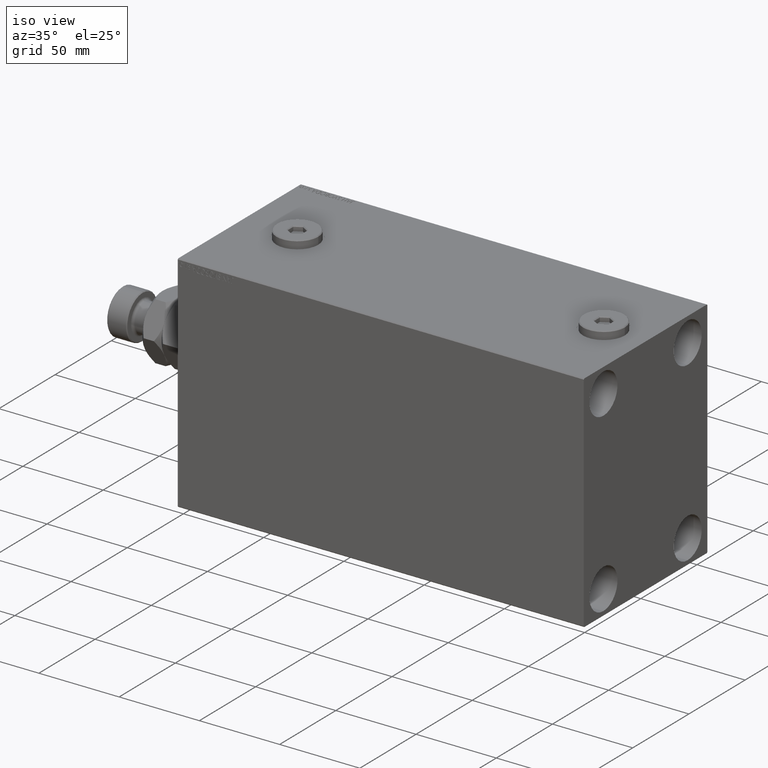
[diagram: clean part render]
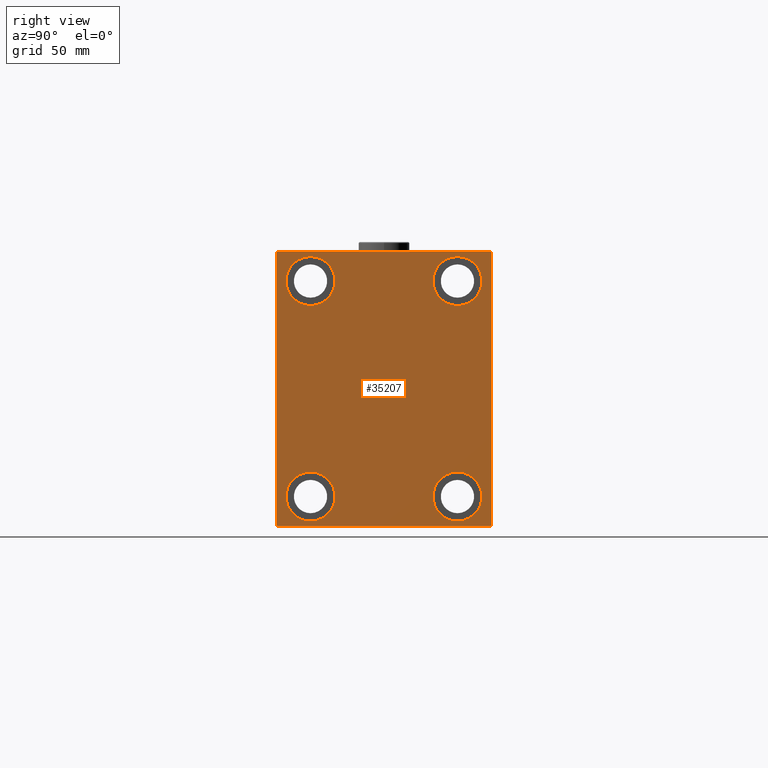
[diagram: tour spotlight — one face highlighted and labeled with its STEP entity id]
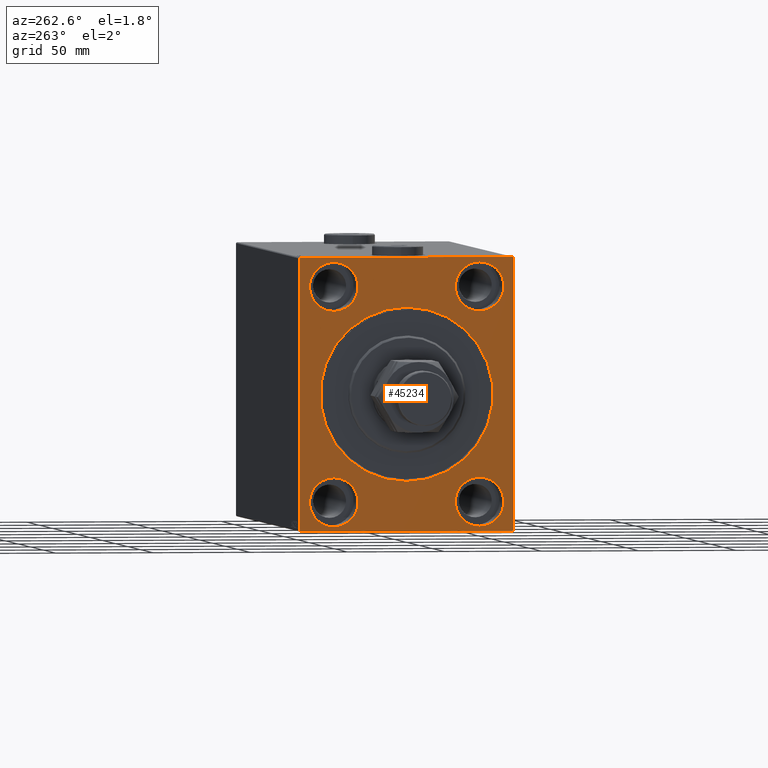
[diagram: tour spotlight — one face highlighted and labeled with its STEP entity id]
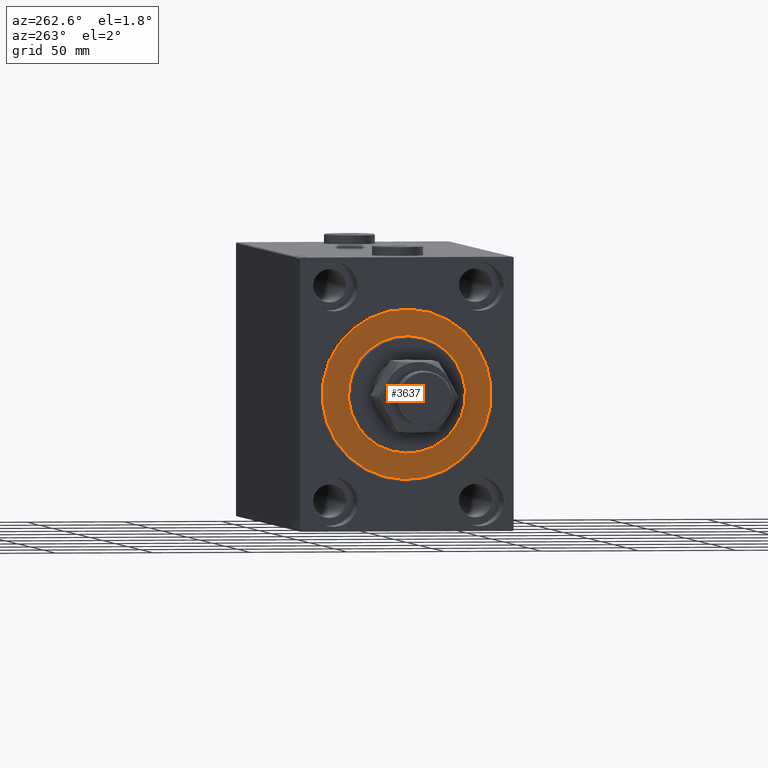
[diagram: tour spotlight — one face highlighted and labeled with its STEP entity id]
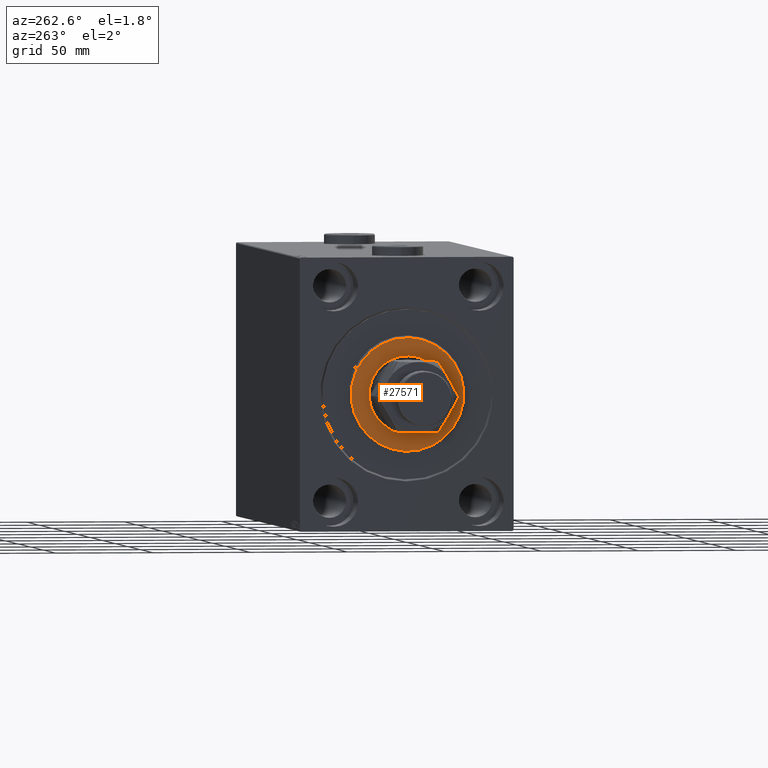
[diagram: tour spotlight — one face highlighted and labeled with its STEP entity id]
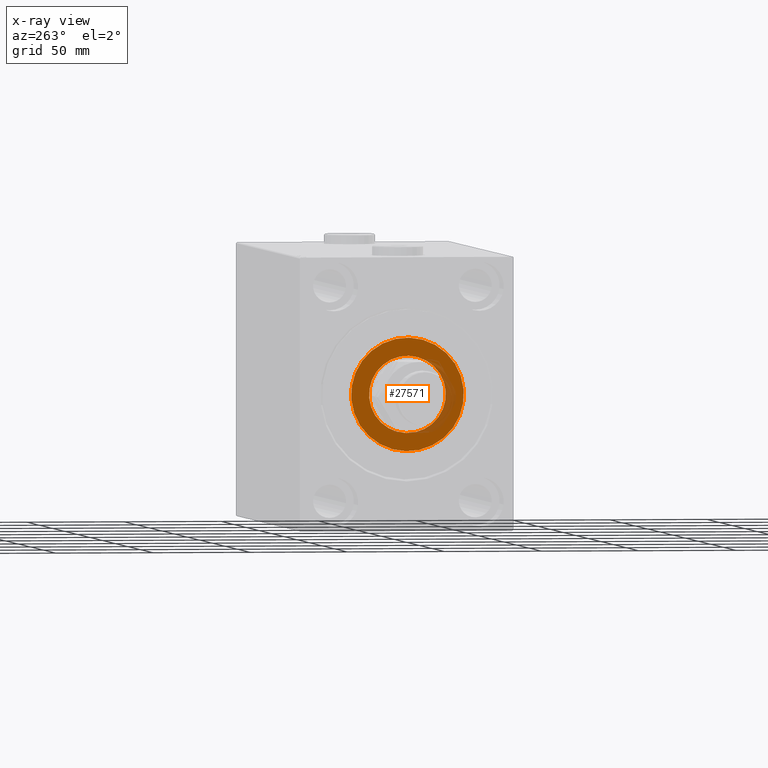
[diagram: x-ray of the same camera — body ghosted, this tour face saturated]
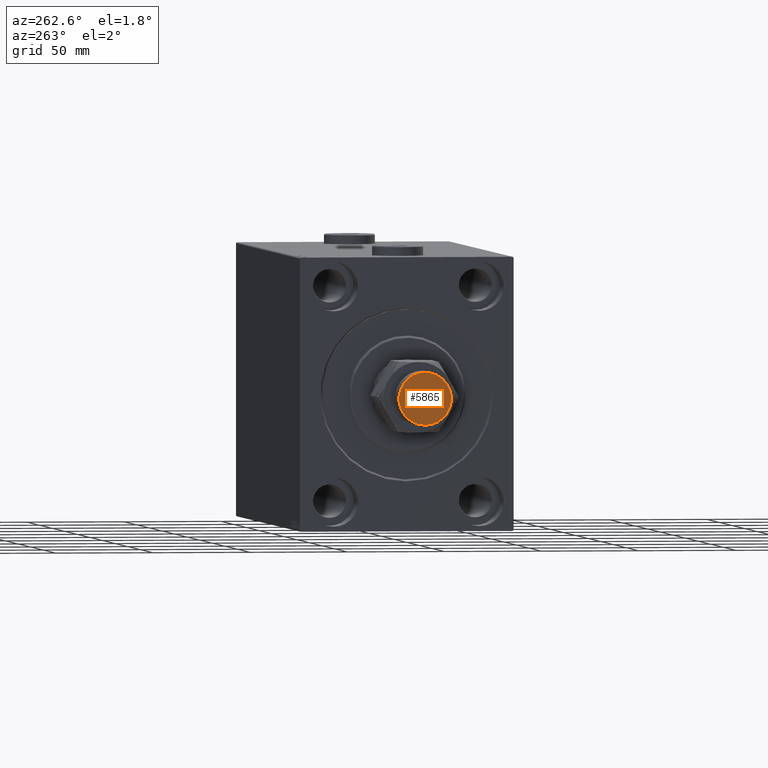
[diagram: tour spotlight — one face highlighted and labeled with its STEP entity id]
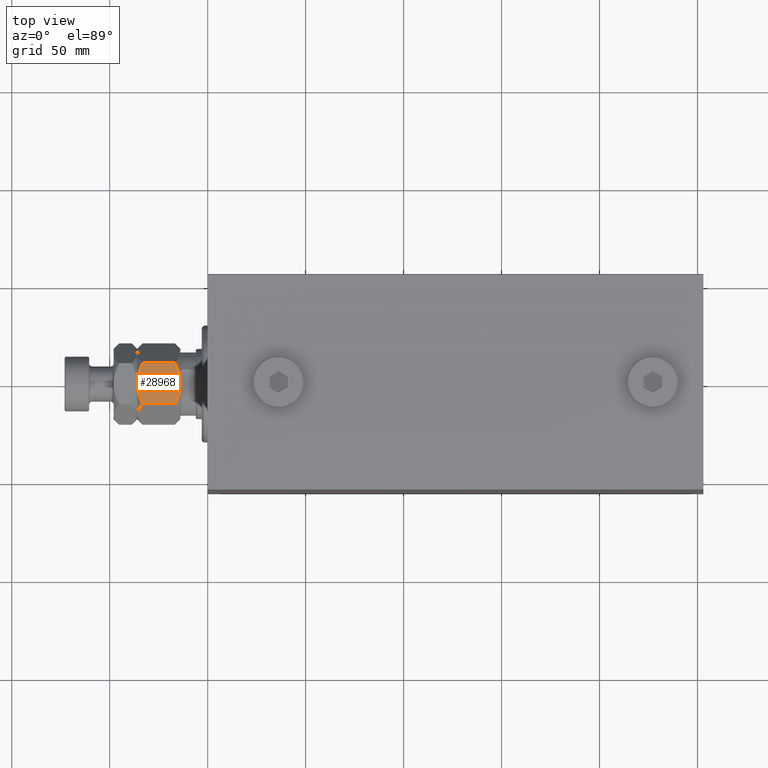
[diagram: tour spotlight — one face highlighted and labeled with its STEP entity id]
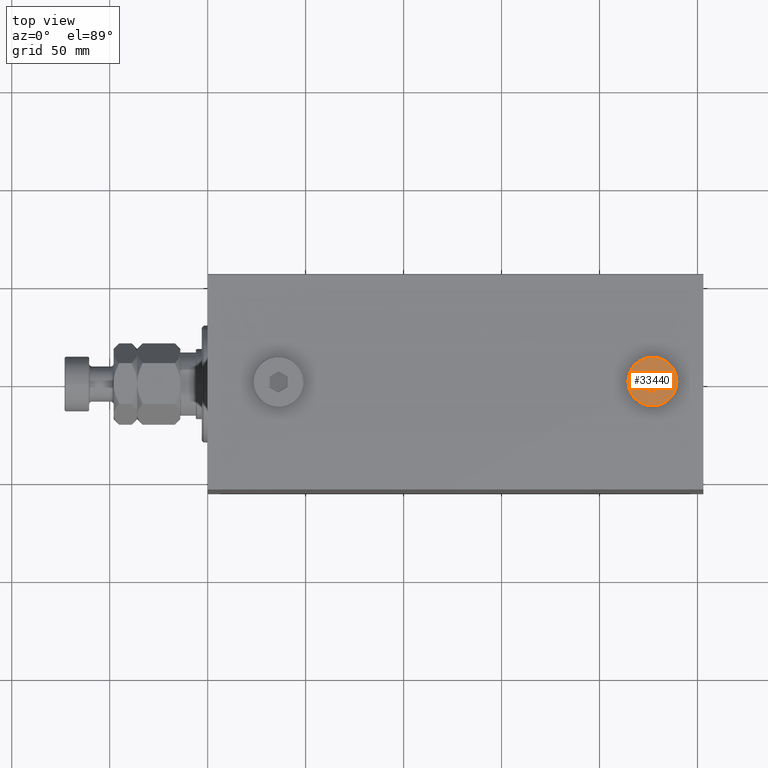
[diagram: tour spotlight — one face highlighted and labeled with its STEP entity id]
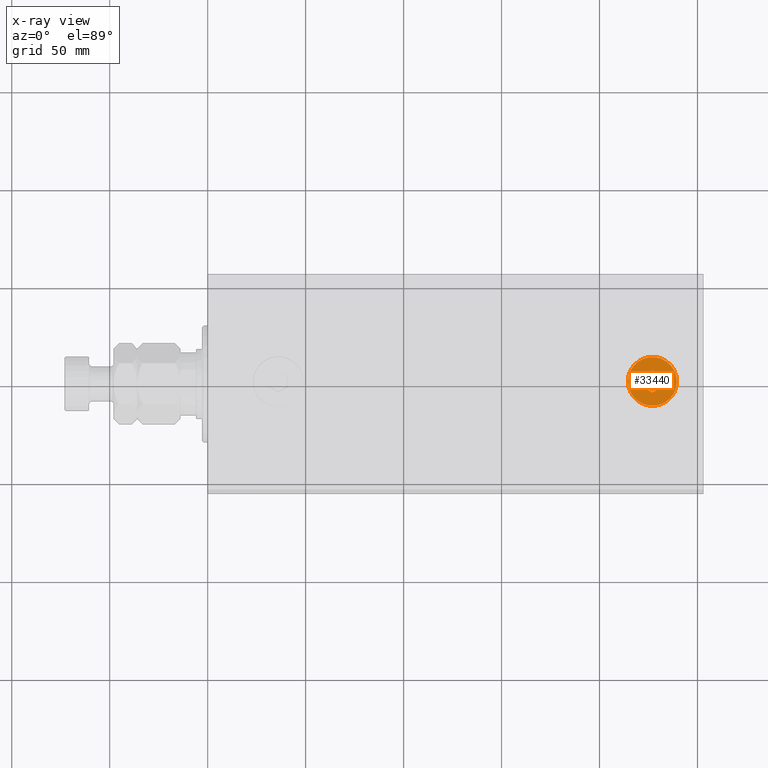
[diagram: x-ray of the same camera — body ghosted, this tour face saturated]
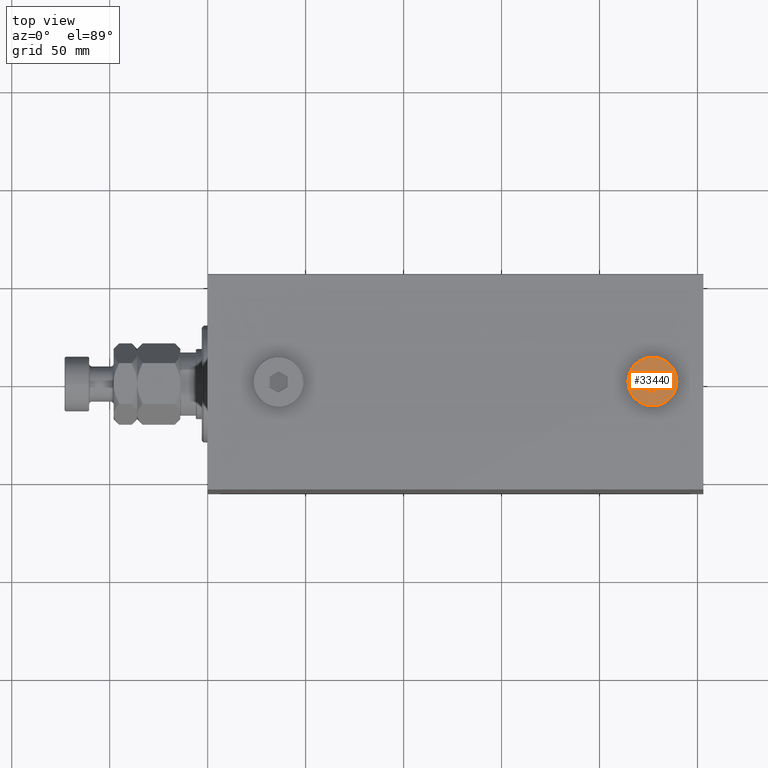
[diagram: tour spotlight — one face highlighted and labeled with its STEP entity id]
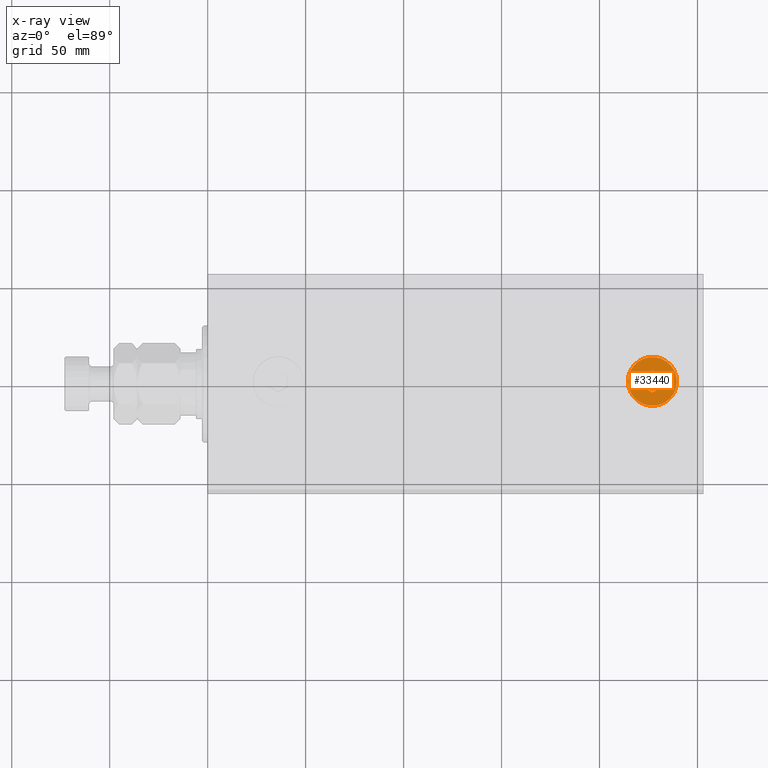
[diagram: x-ray of the same camera — body ghosted, this tour face saturated]
A machine part: a face-by-face anatomy tour. The part has 971 B-rep faces; the first image is the clean iso view, then the 8 largest visible faces are spotlighted one at a time (largest first), each with its STEP entity span.

Face 1 — right view, entity #35207. In plain terms, the highlighted planar face has unit normal (1, 0, 0).
Definition (entity closure, byte-faithful):
#106 = CIRCLE ( 'NONE', #44886, 12.49999999999999645 ) ;
#218 = DIRECTION ( 'NONE',  ( 0.000000000000000000, 0.000000000000000000, 1.000000000000000000 ) ) ;
#249 = CARTESIAN_POINT ( 'NONE',  ( 253.0000000000000000, 55.00000000000002132, -69.50000000000002842 ) ) ;
#429 = EDGE_CURVE ( 'NONE', #6977, #15236, #106, .T. ) ;
#434 = EDGE_CURVE ( 'NONE', #27866, #21232, #6200, .T. ) ;
#582 = EDGE_CURVE ( 'NONE', #34641, #37173, #16503, .T. ) ;
#1386 = CIRCLE ( 'NONE', #40144, 12.49999999999999645 ) ;
#1406 = DIRECTION ( 'NONE',  ( -0.000000000000000000, -0.7071067811865279218, 0.7071067811865671127 ) ) ;
#1759 = DIRECTION ( 'NONE',  ( -0.000000000000000000, 0.7071067811865181518, -0.7071067811865769936 ) ) ;
#1825 = CARTESIAN_POINT ( 'NONE',  ( 253.0000000000000000, -54.50000000000006395, 69.99999999999998579 ) ) ;
#1889 = DIRECTION ( 'NONE',  ( 0.000000000000000000, 0.000000000000000000, 1.000000000000000000 ) ) ;
#1892 = ORIENTED_EDGE ( 'NONE', *, *, #6945, .T. ) ;
#1929 = DIRECTION ( 'NONE',  ( -1.000000000000000000, -0.000000000000000000, -0.000000000000000000 ) ) ;
#2114 = EDGE_LOOP ( 'NONE', ( #23274, #45359 ) ) ;
#2402 = CARTESIAN_POINT ( 'NONE',  ( 253.0000000000000000, -62.25000000000002132, 62.25000000000002132 ) ) ;
#2760 = EDGE_CURVE ( 'NONE', #15236, #6977, #38932, .T. ) ;
#4271 = VERTEX_POINT ( 'NONE', #1825 ) ;
#4489 = AXIS2_PLACEMENT_3D ( 'NONE', #20266, #1929, #45208 ) ;
#5172 = ORIENTED_EDGE ( 'NONE', *, *, #18937, .T. ) ;
#5287 = EDGE_CURVE ( 'NONE', #37173, #17115, #39413, .T. ) ;
#5371 = VERTEX_POINT ( 'NONE', #33660 ) ;
#5688 = ORIENTED_EDGE ( 'NONE', *, *, #32043, .T. ) ;
#6200 = CIRCLE ( 'NONE', #38865, 12.49999999999999645 ) ;
#6251 = DIRECTION ( 'NONE',  ( 0.000000000000000000, 1.000000000000000000, 2.523234146875355012E-16 ) ) ;
#6945 = EDGE_CURVE ( 'NONE', #27224, #39798, #13870, .T. ) ;
#6977 = VERTEX_POINT ( 'NONE', #18868 ) ;
#7755 = AXIS2_PLACEMENT_3D ( 'NONE', #35250, #13611, #43079 ) ;
#8233 = DIRECTION ( 'NONE',  ( 0.000000000000000000, 0.000000000000000000, 1.000000000000000000 ) ) ;
#9060 = EDGE_CURVE ( 'NONE', #4271, #14968, #24066, .T. ) ;
#9371 = EDGE_CURVE ( 'NONE', #30539, #4271, #22064, .T. ) ;
#9575 = ORIENTED_EDGE ( 'NONE', *, *, #582, .T. ) ;
#9983 = CARTESIAN_POINT ( 'NONE',  ( 253.0000000000000000, -54.50000000000003553, -70.00000000000002842 ) ) ;
#11109 = DIRECTION ( 'NONE',  ( 0.000000000000000000, -1.000000000000000000, -1.261617073437677999E-16 ) ) ;
#11374 = CARTESIAN_POINT ( 'NONE',  ( 253.0000000000000000, -55.00000000000000711, 69.50000000000004263 ) ) ;
#11593 = AXIS2_PLACEMENT_3D ( 'NONE', #36937, #12187, #15997 ) ;
#12187 = DIRECTION ( 'NONE',  ( -1.000000000000000000, -0.000000000000000000, -0.000000000000000000 ) ) ;
#12452 = DIRECTION ( 'NONE',  ( -1.000000000000000000, -0.000000000000000000, -0.000000000000000000 ) ) ;
#12534 = ORIENTED_EDGE ( 'NONE', *, *, #9060, .T. ) ;
#13611 = DIRECTION ( 'NONE',  ( -1.000000000000000000, -0.000000000000000000, -0.000000000000000000 ) ) ;
#13622 = CARTESIAN_POINT ( 'NONE',  ( 253.0000000000000000, -37.50000000000002132, -42.49999999999999289 ) ) ;
#13870 = CIRCLE ( 'NONE', #11593, 12.49999999999999645 ) ;
#14425 = CARTESIAN_POINT ( 'NONE',  ( 253.0000000000000000, 54.50000000000002132, 70.00000000000000000 ) ) ;
#14968 = VERTEX_POINT ( 'NONE', #11374 ) ;
#14992 = CARTESIAN_POINT ( 'NONE',  ( 253.0000000000000000, -37.50000000000002132, -54.99999999999999289 ) ) ;
#15166 = CARTESIAN_POINT ( 'NONE',  ( 253.0000000000000000, -37.50000000000000711, 55.00000000000000711 ) ) ;
#15236 = VERTEX_POINT ( 'NONE', #25119 ) ;
#15575 = AXIS2_PLACEMENT_3D ( 'NONE', #23086, #23547, #1889 ) ;
#15708 = CARTESIAN_POINT ( 'NONE',  ( 253.0000000000000000, -37.50000000000002132, -67.49999999999998579 ) ) ;
#15803 = AXIS2_PLACEMENT_3D ( 'NONE', #14992, #36148, #218 ) ;
#15997 = DIRECTION ( 'NONE',  ( 0.000000000000000000, 0.000000000000000000, 1.000000000000000000 ) ) ;
#16399 = EDGE_LOOP ( 'NONE', ( #37127, #12534, #37266, #5172, #9575, #20217, #5688, #39678 ) ) ;
#16503 = LINE ( 'NONE', #38843, #21383 ) ;
#17115 = VERTEX_POINT ( 'NONE', #249 ) ;
#18319 = CARTESIAN_POINT ( 'NONE',  ( 253.0000000000000000, 54.50000000000004974, -70.00000000000000000 ) ) ;
#18339 = EDGE_CURVE ( 'NONE', #5371, #30539, #19501, .T. ) ;
#18494 = CARTESIAN_POINT ( 'NONE',  ( 253.0000000000000000, 54.99999999999999289, 70.00000000000000000 ) ) ;
#18868 = CARTESIAN_POINT ( 'NONE',  ( 253.0000000000000000, 37.50000000000000711, 67.50000000000000000 ) ) ;
#18937 = EDGE_CURVE ( 'NONE', #20818, #34641, #27214, .T. ) ;
#19405 = DIRECTION ( 'NONE',  ( 0.000000000000000000, 0.000000000000000000, -1.000000000000000000 ) ) ;
#19501 = LINE ( 'NONE', #33990, #45308 ) ;
#19832 = EDGE_CURVE ( 'NONE', #14968, #20818, #35855, .T. ) ;
#20217 = ORIENTED_EDGE ( 'NONE', *, *, #5287, .T. ) ;
#20266 = CARTESIAN_POINT ( 'NONE',  ( 253.0000000000000000, 37.49999999999997868, -54.99999999999999289 ) ) ;
#20818 = VERTEX_POINT ( 'NONE', #35802 ) ;
#20880 = CARTESIAN_POINT ( 'NONE',  ( 253.0000000000000000, -37.50000000000000711, 42.50000000000000711 ) ) ;
#21051 = EDGE_LOOP ( 'NONE', ( #35505, #24583 ) ) ;
#21232 = VERTEX_POINT ( 'NONE', #25990 ) ;
#21383 = VECTOR ( 'NONE', #6251, 1000.000000000000000 ) ;
#22064 = LINE ( 'NONE', #18494, #37494 ) ;
#22293 = DIRECTION ( 'NONE',  ( -1.000000000000000000, -0.000000000000000000, -0.000000000000000000 ) ) ;
#22452 = CARTESIAN_POINT ( 'NONE',  ( 253.0000000000000000, -37.50000000000000711, 67.50000000000000000 ) ) ;
#22477 = DIRECTION ( 'NONE',  ( 0.000000000000000000, 0.000000000000000000, 1.000000000000000000 ) ) ;
#22666 = CIRCLE ( 'NONE', #15803, 12.49999999999999645 ) ;
#23086 = CARTESIAN_POINT ( 'NONE',  ( 253.0000000000000000, -37.50000000000002132, -54.99999999999999289 ) ) ;
#23274 = ORIENTED_EDGE ( 'NONE', *, *, #42110, .T. ) ;
#23547 = DIRECTION ( 'NONE',  ( -1.000000000000000000, -0.000000000000000000, -0.000000000000000000 ) ) ;
#23701 = ORIENTED_EDGE ( 'NONE', *, *, #40764, .T. ) ;
#23989 = CARTESIAN_POINT ( 'NONE',  ( 253.0000000000000000, -55.00000000000000711, 69.99999999999998579 ) ) ;
#24066 = LINE ( 'NONE', #2402, #40493 ) ;
#24492 = ORIENTED_EDGE ( 'NONE', *, *, #2760, .T. ) ;
#24583 = ORIENTED_EDGE ( 'NONE', *, *, #40230, .T. ) ;
#25119 = CARTESIAN_POINT ( 'NONE',  ( 253.0000000000000000, 37.50000000000000711, 42.50000000000000711 ) ) ;
#25263 = LINE ( 'NONE', #40003, #27095 ) ;
#25990 = CARTESIAN_POINT ( 'NONE',  ( 253.0000000000000000, 37.49999999999997868, -67.49999999999998579 ) ) ;
#26539 = FACE_OUTER_BOUND ( 'NONE', #16399, .T. ) ;
#27095 = VECTOR ( 'NONE', #32388, 1000.000000000000000 ) ;
#27214 = LINE ( 'NONE', #30770, #27619 ) ;
#27224 = VERTEX_POINT ( 'NONE', #22452 ) ;
#27619 = VECTOR ( 'NONE', #1759, 1000.000000000000000 ) ;
#27628 = EDGE_CURVE ( 'NONE', #42320, #39116, #34560, .T. ) ;
#27866 = VERTEX_POINT ( 'NONE', #45431 ) ;
#28472 = CARTESIAN_POINT ( 'NONE',  ( 253.0000000000000000, 62.25000000000002842, -62.25000000000002842 ) ) ;
#28654 = CARTESIAN_POINT ( 'NONE',  ( 253.0000000000000000, 37.50000000000000711, 55.00000000000000711 ) ) ;
#28886 = DIRECTION ( 'NONE',  ( 0.000000000000000000, 0.000000000000000000, 1.000000000000000000 ) ) ;
#30328 = DIRECTION ( 'NONE',  ( 1.000000000000000000, 0.000000000000000000, 0.000000000000000000 ) ) ;
#30466 = DIRECTION ( 'NONE',  ( 0.000000000000000000, -0.7071067811865474617, -0.7071067811865474617 ) ) ;
#30539 = VERTEX_POINT ( 'NONE', #14425 ) ;
#30770 = CARTESIAN_POINT ( 'NONE',  ( 253.0000000000000000, -62.25000000000230216, -62.24999999999712941 ) ) ;
#32043 = EDGE_CURVE ( 'NONE', #17115, #5371, #25263, .T. ) ;
#32386 = ORIENTED_EDGE ( 'NONE', *, *, #429, .T. ) ;
#32388 = DIRECTION ( 'NONE',  ( 0.000000000000000000, -1.982541115402065110E-16, 1.000000000000000000 ) ) ;
#33660 = CARTESIAN_POINT ( 'NONE',  ( 253.0000000000000000, 54.99999999999999289, 69.50000000000000000 ) ) ;
#33990 = CARTESIAN_POINT ( 'NONE',  ( 253.0000000000000000, 62.25000000000152767, 62.24999999999806732 ) ) ;
#34560 = CIRCLE ( 'NONE', #15575, 12.49999999999999645 ) ;
#34641 = VERTEX_POINT ( 'NONE', #9983 ) ;
#35207 = ADVANCED_FACE ( 'NONE', ( #45525, #41271, #41737, #45764, #26539 ), #37942, .T. ) ;
#35250 = CARTESIAN_POINT ( 'NONE',  ( 253.0000000000000000, 37.50000000000000711, 55.00000000000000711 ) ) ;
#35505 = ORIENTED_EDGE ( 'NONE', *, *, #27628, .T. ) ;
#35802 = CARTESIAN_POINT ( 'NONE',  ( 253.0000000000000000, -55.00000000000000711, -69.50000000000001421 ) ) ;
#35855 = LINE ( 'NONE', #23989, #40538 ) ;
#36148 = DIRECTION ( 'NONE',  ( -1.000000000000000000, -0.000000000000000000, -0.000000000000000000 ) ) ;
#36937 = CARTESIAN_POINT ( 'NONE',  ( 253.0000000000000000, -37.50000000000000711, 55.00000000000000711 ) ) ;
#37127 = ORIENTED_EDGE ( 'NONE', *, *, #9371, .T. ) ;
#37173 = VERTEX_POINT ( 'NONE', #18319 ) ;
#37266 = ORIENTED_EDGE ( 'NONE', *, *, #19832, .T. ) ;
#37494 = VECTOR ( 'NONE', #11109, 1000.000000000000000 ) ;
#37942 = PLANE ( 'NONE',  #46920 ) ;
#38181 = CARTESIAN_POINT ( 'NONE',  ( 253.0000000000000000, 0.000000000000000000, 0.000000000000000000 ) ) ;
#38843 = CARTESIAN_POINT ( 'NONE',  ( 253.0000000000000000, -55.00000000000000711, -70.00000000000002842 ) ) ;
#38865 = AXIS2_PLACEMENT_3D ( 'NONE', #43391, #12452, #22477 ) ;
#38932 = CIRCLE ( 'NONE', #7755, 12.49999999999999645 ) ;
#39116 = VERTEX_POINT ( 'NONE', #13622 ) ;
#39413 = LINE ( 'NONE', #28472, #44277 ) ;
#39678 = ORIENTED_EDGE ( 'NONE', *, *, #18339, .T. ) ;
#39798 = VERTEX_POINT ( 'NONE', #20880 ) ;
#40003 = CARTESIAN_POINT ( 'NONE',  ( 253.0000000000000000, 55.00000000000002132, -70.00000000000000000 ) ) ;
#40144 = AXIS2_PLACEMENT_3D ( 'NONE', #15166, #22293, #8233 ) ;
#40230 = EDGE_CURVE ( 'NONE', #39116, #42320, #22666, .T. ) ;
#40493 = VECTOR ( 'NONE', #30466, 1000.000000000000114 ) ;
#40538 = VECTOR ( 'NONE', #46550, 1000.000000000000000 ) ;
#40764 = EDGE_CURVE ( 'NONE', #39798, #27224, #1386, .T. ) ;
#40917 = EDGE_LOOP ( 'NONE', ( #23701, #1892 ) ) ;
#41271 = FACE_BOUND ( 'NONE', #40917, .T. ) ;
#41737 = FACE_BOUND ( 'NONE', #44317, .T. ) ;
#42110 = EDGE_CURVE ( 'NONE', #21232, #27866, #43227, .T. ) ;
#42320 = VERTEX_POINT ( 'NONE', #15708 ) ;
#42977 = DIRECTION ( 'NONE',  ( -0.000000000000000000, 0.7071067811865474617, 0.7071067811865474617 ) ) ;
#43079 = DIRECTION ( 'NONE',  ( 0.000000000000000000, 0.000000000000000000, 1.000000000000000000 ) ) ;
#43160 = DIRECTION ( 'NONE',  ( -1.000000000000000000, -0.000000000000000000, -0.000000000000000000 ) ) ;
#43227 = CIRCLE ( 'NONE', #4489, 12.49999999999999645 ) ;
#43391 = CARTESIAN_POINT ( 'NONE',  ( 253.0000000000000000, 37.49999999999997868, -54.99999999999999289 ) ) ;
#44277 = VECTOR ( 'NONE', #42977, 1000.000000000000114 ) ;
#44317 = EDGE_LOOP ( 'NONE', ( #24492, #32386 ) ) ;
#44886 = AXIS2_PLACEMENT_3D ( 'NONE', #28654, #43160, #28886 ) ;
#45208 = DIRECTION ( 'NONE',  ( 0.000000000000000000, 0.000000000000000000, 1.000000000000000000 ) ) ;
#45308 = VECTOR ( 'NONE', #1406, 1000.000000000000000 ) ;
#45359 = ORIENTED_EDGE ( 'NONE', *, *, #434, .T. ) ;
#45431 = CARTESIAN_POINT ( 'NONE',  ( 253.0000000000000000, 37.49999999999997868, -42.49999999999999289 ) ) ;
#45525 = FACE_BOUND ( 'NONE', #2114, .T. ) ;
#45764 = FACE_BOUND ( 'NONE', #21051, .T. ) ;
#46550 = DIRECTION ( 'NONE',  ( 0.000000000000000000, 0.000000000000000000, -1.000000000000000000 ) ) ;
#46920 = AXIS2_PLACEMENT_3D ( 'NONE', #38181, #30328, #19405 ) ;

Face 2 — auxiliary view, entity #45234. In plain terms, the highlighted planar face has unit normal (1, 0, 0).
Definition (entity closure, byte-faithful):
#44 = CARTESIAN_POINT ( 'NONE',  ( 0.000000000000000000, 37.50000000000000711, 42.50000000000000711 ) ) ;
#473 = CARTESIAN_POINT ( 'NONE',  ( 0.000000000000000000, 37.49999999999997868, -42.49999999999999289 ) ) ;
#653 = CIRCLE ( 'NONE', #39393, 12.49999999999999645 ) ;
#919 = CARTESIAN_POINT ( 'NONE',  ( 0.000000000000000000, 54.50000000000004974, -70.00000000000000000 ) ) ;
#1332 = FACE_BOUND ( 'NONE', #32890, .T. ) ;
#1559 = FACE_OUTER_BOUND ( 'NONE', #15241, .T. ) ;
#1775 = EDGE_CURVE ( 'NONE', #15001, #28843, #19881, .T. ) ;
#2165 = EDGE_CURVE ( 'NONE', #43887, #25125, #13771, .T. ) ;
#2591 = AXIS2_PLACEMENT_3D ( 'NONE', #15639, #18507, #32994 ) ;
#3988 = VECTOR ( 'NONE', #24947, 1000.000000000000000 ) ;
#4167 = CARTESIAN_POINT ( 'NONE',  ( 0.000000000000000000, 55.00000000000002132, -69.50000000000002842 ) ) ;
#4189 = DIRECTION ( 'NONE',  ( 1.000000000000000000, 0.000000000000000000, 0.000000000000000000 ) ) ;
#4211 = DIRECTION ( 'NONE',  ( 0.000000000000000000, 0.000000000000000000, -1.000000000000000000 ) ) ;
#4325 = DIRECTION ( 'NONE',  ( 0.000000000000000000, 0.000000000000000000, 1.000000000000000000 ) ) ;
#4411 = ORIENTED_EDGE ( 'NONE', *, *, #15985, .F. ) ;
#4692 = AXIS2_PLACEMENT_3D ( 'NONE', #16226, #30705, #45926 ) ;
#4759 = VERTEX_POINT ( 'NONE', #13795 ) ;
#4832 = VECTOR ( 'NONE', #40376, 1000.000000000000000 ) ;
#4966 = DIRECTION ( 'NONE',  ( 0.000000000000000000, -0.7071067811865474617, -0.7071067811865474617 ) ) ;
#4982 = ORIENTED_EDGE ( 'NONE', *, *, #9544, .T. ) ;
#5748 = ORIENTED_EDGE ( 'NONE', *, *, #22654, .F. ) ;
#6277 = CARTESIAN_POINT ( 'NONE',  ( 0.000000000000000000, -37.50000000000002132, -42.49999999999999289 ) ) ;
#6592 = EDGE_CURVE ( 'NONE', #43084, #46765, #26728, .T. ) ;
#6766 = CARTESIAN_POINT ( 'NONE',  ( 0.000000000000000000, -37.50000000000002132, -67.49999999999998579 ) ) ;
#6832 = DIRECTION ( 'NONE',  ( 0.000000000000000000, -1.000000000000000000, -1.261617073437677999E-16 ) ) ;
#7846 = CARTESIAN_POINT ( 'NONE',  ( 0.000000000000000000, -37.50000000000002132, -54.99999999999999289 ) ) ;
#8019 = AXIS2_PLACEMENT_3D ( 'NONE', #35828, #17537, #31791 ) ;
#8020 = CIRCLE ( 'NONE', #34601, 12.49999999999999645 ) ;
#8046 = VERTEX_POINT ( 'NONE', #10968 ) ;
#8322 = LINE ( 'NONE', #19040, #33217 ) ;
#8696 = VECTOR ( 'NONE', #46454, 1000.000000000000000 ) ;
#9081 = CARTESIAN_POINT ( 'NONE',  ( 0.000000000000000000, 37.50000000000000711, 55.00000000000000711 ) ) ;
#9316 = VERTEX_POINT ( 'NONE', #42285 ) ;
#9544 = EDGE_CURVE ( 'NONE', #43887, #46823, #26781, .T. ) ;
#9691 = VERTEX_POINT ( 'NONE', #44 ) ;
#10448 = EDGE_CURVE ( 'NONE', #37515, #8046, #13986, .T. ) ;
#10968 = CARTESIAN_POINT ( 'NONE',  ( 0.000000000000000000, -54.50000000000006395, 69.99999999999998579 ) ) ;
#11155 = AXIS2_PLACEMENT_3D ( 'NONE', #29479, #28543, #14274 ) ;
#11285 = EDGE_CURVE ( 'NONE', #33514, #9316, #11698, .T. ) ;
#11698 = CIRCLE ( 'NONE', #2591, 12.49999999999999645 ) ;
#12471 = DIRECTION ( 'NONE',  ( 0.000000000000000000, 0.000000000000000000, -1.000000000000000000 ) ) ;
#13771 = LINE ( 'NONE', #28272, #3988 ) ;
#13795 = CARTESIAN_POINT ( 'NONE',  ( 0.000000000000000000, 5.449678256205719615E-15, -44.49999999999998579 ) ) ;
#13986 = LINE ( 'NONE', #43455, #17786 ) ;
#14274 = DIRECTION ( 'NONE',  ( 0.000000000000000000, 0.000000000000000000, 1.000000000000000000 ) ) ;
#14674 = DIRECTION ( 'NONE',  ( 0.000000000000000000, 0.000000000000000000, -1.000000000000000000 ) ) ;
#15001 = VERTEX_POINT ( 'NONE', #33249 ) ;
#15241 = EDGE_LOOP ( 'NONE', ( #5748, #35115, #20572, #30908, #26224, #26447, #17867, #4982 ) ) ;
#15469 = EDGE_LOOP ( 'NONE', ( #45715, #46806 ) ) ;
#15639 = CARTESIAN_POINT ( 'NONE',  ( 0.000000000000000000, -37.50000000000000711, 55.00000000000000711 ) ) ;
#15720 = DIRECTION ( 'NONE',  ( -0.000000000000000000, 0.7071067811865474617, 0.7071067811865474617 ) ) ;
#15930 = LINE ( 'NONE', #27083, #17385 ) ;
#15985 = EDGE_CURVE ( 'NONE', #9316, #33514, #42952, .T. ) ;
#16226 = CARTESIAN_POINT ( 'NONE',  ( 0.000000000000000000, 37.49999999999997868, -54.99999999999999289 ) ) ;
#16264 = CARTESIAN_POINT ( 'NONE',  ( 0.000000000000000000, 54.50000000000002132, 70.00000000000000000 ) ) ;
#16539 = CARTESIAN_POINT ( 'NONE',  ( 0.000000000000000000, -55.00000000000000711, 69.50000000000004263 ) ) ;
#17280 = DIRECTION ( 'NONE',  ( -1.000000000000000000, 0.000000000000000000, 0.000000000000000000 ) ) ;
#17385 = VECTOR ( 'NONE', #4966, 1000.000000000000114 ) ;
#17537 = DIRECTION ( 'NONE',  ( -1.000000000000000000, 0.000000000000000000, 0.000000000000000000 ) ) ;
#17650 = VERTEX_POINT ( 'NONE', #46564 ) ;
#17786 = VECTOR ( 'NONE', #6832, 1000.000000000000000 ) ;
#17867 = ORIENTED_EDGE ( 'NONE', *, *, #2165, .F. ) ;
#18507 = DIRECTION ( 'NONE',  ( -1.000000000000000000, 0.000000000000000000, 0.000000000000000000 ) ) ;
#18508 = LINE ( 'NONE', #25874, #4832 ) ;
#18932 = ORIENTED_EDGE ( 'NONE', *, *, #37735, .F. ) ;
#19040 = CARTESIAN_POINT ( 'NONE',  ( 0.000000000000000000, -55.00000000000000711, 69.50000000000004263 ) ) ;
#19197 = FACE_BOUND ( 'NONE', #35994, .T. ) ;
#19694 = ORIENTED_EDGE ( 'NONE', *, *, #27379, .F. ) ;
#19810 = CARTESIAN_POINT ( 'NONE',  ( 0.000000000000000000, -54.50000000000003553, -70.00000000000002842 ) ) ;
#19881 = CIRCLE ( 'NONE', #4692, 12.49999999999999645 ) ;
#20263 = ORIENTED_EDGE ( 'NONE', *, *, #33157, .F. ) ;
#20572 = ORIENTED_EDGE ( 'NONE', *, *, #10448, .F. ) ;
#20650 = EDGE_CURVE ( 'NONE', #21789, #17650, #18508, .T. ) ;
#21789 = VERTEX_POINT ( 'NONE', #4167 ) ;
#21814 = CARTESIAN_POINT ( 'NONE',  ( 0.000000000000000000, 0.000000000000000000, 0.000000000000000000 ) ) ;
#22305 = PLANE ( 'NONE',  #41783 ) ;
#22654 = EDGE_CURVE ( 'NONE', #30780, #46823, #29096, .T. ) ;
#22987 = CARTESIAN_POINT ( 'NONE',  ( 0.000000000000000000, -54.50000000000003553, -70.00000000000002842 ) ) ;
#23140 = DIRECTION ( 'NONE',  ( 0.000000000000000000, 0.000000000000000000, 1.000000000000000000 ) ) ;
#23183 = DIRECTION ( 'NONE',  ( 1.000000000000000000, 0.000000000000000000, 0.000000000000000000 ) ) ;
#23431 = CARTESIAN_POINT ( 'NONE',  ( 0.000000000000000000, 0.000000000000000000, 44.49999999999998579 ) ) ;
#23618 = VERTEX_POINT ( 'NONE', #39812 ) ;
#24174 = DIRECTION ( 'NONE',  ( 0.000000000000000000, 0.000000000000000000, 1.000000000000000000 ) ) ;
#24947 = DIRECTION ( 'NONE',  ( 0.000000000000000000, 1.000000000000000000, 2.523234146875355012E-16 ) ) ;
#25125 = VERTEX_POINT ( 'NONE', #919 ) ;
#25298 = CARTESIAN_POINT ( 'NONE',  ( 0.000000000000000000, -55.00000000000000711, 69.99999999999998579 ) ) ;
#25874 = CARTESIAN_POINT ( 'NONE',  ( 0.000000000000000000, 55.00000000000002132, -70.00000000000000000 ) ) ;
#26224 = ORIENTED_EDGE ( 'NONE', *, *, #20650, .F. ) ;
#26401 = EDGE_CURVE ( 'NONE', #4759, #30718, #29995, .T. ) ;
#26447 = ORIENTED_EDGE ( 'NONE', *, *, #41541, .T. ) ;
#26728 = CIRCLE ( 'NONE', #42696, 12.49999999999999645 ) ;
#26781 = LINE ( 'NONE', #22987, #36726 ) ;
#26960 = CIRCLE ( 'NONE', #43676, 12.49999999999999645 ) ;
#27083 = CARTESIAN_POINT ( 'NONE',  ( 0.000000000000000000, 55.00000000000002132, -69.50000000000002842 ) ) ;
#27379 = EDGE_CURVE ( 'NONE', #23618, #9691, #26960, .T. ) ;
#28272 = CARTESIAN_POINT ( 'NONE',  ( 0.000000000000000000, -55.00000000000000711, -70.00000000000002842 ) ) ;
#28543 = DIRECTION ( 'NONE',  ( -1.000000000000000000, 0.000000000000000000, 0.000000000000000000 ) ) ;
#28843 = VERTEX_POINT ( 'NONE', #473 ) ;
#29036 = CARTESIAN_POINT ( 'NONE',  ( 0.000000000000000000, -37.50000000000000711, 42.50000000000000711 ) ) ;
#29096 = LINE ( 'NONE', #25298, #8696 ) ;
#29263 = DIRECTION ( 'NONE',  ( -1.000000000000000000, 0.000000000000000000, 0.000000000000000000 ) ) ;
#29308 = EDGE_CURVE ( 'NONE', #28843, #15001, #8020, .T. ) ;
#29442 = CARTESIAN_POINT ( 'NONE',  ( 0.000000000000000000, 54.50000000000002132, 70.00000000000000000 ) ) ;
#29479 = CARTESIAN_POINT ( 'NONE',  ( 0.000000000000000000, -37.50000000000002132, -54.99999999999999289 ) ) ;
#29995 = CIRCLE ( 'NONE', #30720, 44.49999999999998579 ) ;
#30570 = DIRECTION ( 'NONE',  ( 1.000000000000000000, 0.000000000000000000, 0.000000000000000000 ) ) ;
#30705 = DIRECTION ( 'NONE',  ( -1.000000000000000000, 0.000000000000000000, 0.000000000000000000 ) ) ;
#30718 = VERTEX_POINT ( 'NONE', #23431 ) ;
#30720 = AXIS2_PLACEMENT_3D ( 'NONE', #44580, #23183, #12471 ) ;
#30780 = VERTEX_POINT ( 'NONE', #16539 ) ;
#30800 = DIRECTION ( 'NONE',  ( -0.000000000000000000, -0.7071067811865181518, 0.7071067811865769936 ) ) ;
#30908 = ORIENTED_EDGE ( 'NONE', *, *, #42737, .T. ) ;
#31648 = CIRCLE ( 'NONE', #11155, 12.49999999999999645 ) ;
#31791 = DIRECTION ( 'NONE',  ( 0.000000000000000000, 0.000000000000000000, 1.000000000000000000 ) ) ;
#31889 = ORIENTED_EDGE ( 'NONE', *, *, #6592, .F. ) ;
#32890 = EDGE_LOOP ( 'NONE', ( #31889, #20263 ) ) ;
#32994 = DIRECTION ( 'NONE',  ( 0.000000000000000000, 0.000000000000000000, 1.000000000000000000 ) ) ;
#33157 = EDGE_CURVE ( 'NONE', #46765, #43084, #31648, .T. ) ;
#33217 = VECTOR ( 'NONE', #15720, 1000.000000000000114 ) ;
#33243 = LINE ( 'NONE', #29442, #34105 ) ;
#33246 = CIRCLE ( 'NONE', #43872, 44.49999999999998579 ) ;
#33249 = CARTESIAN_POINT ( 'NONE',  ( 0.000000000000000000, 37.49999999999997868, -67.49999999999998579 ) ) ;
#33337 = DIRECTION ( 'NONE',  ( -1.000000000000000000, 0.000000000000000000, 0.000000000000000000 ) ) ;
#33452 = FACE_BOUND ( 'NONE', #36398, .T. ) ;
#33514 = VERTEX_POINT ( 'NONE', #29036 ) ;
#33569 = EDGE_CURVE ( 'NONE', #30780, #8046, #8322, .T. ) ;
#33682 = FACE_BOUND ( 'NONE', #46949, .T. ) ;
#34105 = VECTOR ( 'NONE', #44176, 1000.000000000000000 ) ;
#34601 = AXIS2_PLACEMENT_3D ( 'NONE', #37964, #17280, #24174 ) ;
#35012 = EDGE_CURVE ( 'NONE', #30718, #4759, #33246, .T. ) ;
#35115 = ORIENTED_EDGE ( 'NONE', *, *, #33569, .T. ) ;
#35301 = ORIENTED_EDGE ( 'NONE', *, *, #11285, .F. ) ;
#35828 = CARTESIAN_POINT ( 'NONE',  ( 0.000000000000000000, -37.50000000000000711, 55.00000000000000711 ) ) ;
#35994 = EDGE_LOOP ( 'NONE', ( #37873, #43011 ) ) ;
#36398 = EDGE_LOOP ( 'NONE', ( #4411, #35301 ) ) ;
#36726 = VECTOR ( 'NONE', #30800, 1000.000000000000000 ) ;
#36807 = CARTESIAN_POINT ( 'NONE',  ( 0.000000000000000000, 0.000000000000000000, 0.000000000000000000 ) ) ;
#37515 = VERTEX_POINT ( 'NONE', #16264 ) ;
#37735 = EDGE_CURVE ( 'NONE', #9691, #23618, #653, .T. ) ;
#37873 = ORIENTED_EDGE ( 'NONE', *, *, #29308, .F. ) ;
#37964 = CARTESIAN_POINT ( 'NONE',  ( 0.000000000000000000, 37.49999999999997868, -54.99999999999999289 ) ) ;
#39358 = CARTESIAN_POINT ( 'NONE',  ( 0.000000000000000000, -55.00000000000000711, -69.50000000000001421 ) ) ;
#39393 = AXIS2_PLACEMENT_3D ( 'NONE', #43575, #33337, #4325 ) ;
#39812 = CARTESIAN_POINT ( 'NONE',  ( 0.000000000000000000, 37.50000000000000711, 67.50000000000000000 ) ) ;
#40376 = DIRECTION ( 'NONE',  ( 0.000000000000000000, -1.982541115402065110E-16, 1.000000000000000000 ) ) ;
#41066 = FACE_BOUND ( 'NONE', #15469, .T. ) ;
#41205 = DIRECTION ( 'NONE',  ( -1.000000000000000000, 0.000000000000000000, 0.000000000000000000 ) ) ;
#41541 = EDGE_CURVE ( 'NONE', #21789, #25125, #15930, .T. ) ;
#41783 = AXIS2_PLACEMENT_3D ( 'NONE', #36807, #30570, #4211 ) ;
#42285 = CARTESIAN_POINT ( 'NONE',  ( 0.000000000000000000, -37.50000000000000711, 67.50000000000000000 ) ) ;
#42696 = AXIS2_PLACEMENT_3D ( 'NONE', #7846, #29263, #43767 ) ;
#42737 = EDGE_CURVE ( 'NONE', #37515, #17650, #33243, .T. ) ;
#42952 = CIRCLE ( 'NONE', #8019, 12.49999999999999645 ) ;
#43011 = ORIENTED_EDGE ( 'NONE', *, *, #1775, .F. ) ;
#43084 = VERTEX_POINT ( 'NONE', #6277 ) ;
#43455 = CARTESIAN_POINT ( 'NONE',  ( 0.000000000000000000, 54.99999999999999289, 70.00000000000000000 ) ) ;
#43575 = CARTESIAN_POINT ( 'NONE',  ( 0.000000000000000000, 37.50000000000000711, 55.00000000000000711 ) ) ;
#43676 = AXIS2_PLACEMENT_3D ( 'NONE', #9081, #41205, #23140 ) ;
#43767 = DIRECTION ( 'NONE',  ( 0.000000000000000000, 0.000000000000000000, 1.000000000000000000 ) ) ;
#43872 = AXIS2_PLACEMENT_3D ( 'NONE', #21814, #4189, #14674 ) ;
#43887 = VERTEX_POINT ( 'NONE', #19810 ) ;
#44176 = DIRECTION ( 'NONE',  ( -0.000000000000000000, 0.7071067811865279218, -0.7071067811865671127 ) ) ;
#44580 = CARTESIAN_POINT ( 'NONE',  ( 0.000000000000000000, 0.000000000000000000, 0.000000000000000000 ) ) ;
#45234 = ADVANCED_FACE ( 'NONE', ( #41066, #19197, #33452, #33682, #1332, #1559 ), #22305, .F. ) ;
#45715 = ORIENTED_EDGE ( 'NONE', *, *, #35012, .T. ) ;
#45926 = DIRECTION ( 'NONE',  ( 0.000000000000000000, 0.000000000000000000, 1.000000000000000000 ) ) ;
#46454 = DIRECTION ( 'NONE',  ( 0.000000000000000000, 0.000000000000000000, -1.000000000000000000 ) ) ;
#46564 = CARTESIAN_POINT ( 'NONE',  ( 0.000000000000000000, 54.99999999999999289, 69.50000000000000000 ) ) ;
#46765 = VERTEX_POINT ( 'NONE', #6766 ) ;
#46806 = ORIENTED_EDGE ( 'NONE', *, *, #26401, .T. ) ;
#46823 = VERTEX_POINT ( 'NONE', #39358 ) ;
#46949 = EDGE_LOOP ( 'NONE', ( #19694, #18932 ) ) ;

Face 3 — auxiliary view, entity #3637. In plain terms, the highlighted planar face has unit normal (1, 0, -0).
Definition (entity closure, byte-faithful):
#1246 = FACE_OUTER_BOUND ( 'NONE', #33014, .T. ) ;
#1276 = DIRECTION ( 'NONE',  ( -1.000000000000000000, 0.000000000000000000, 0.000000000000000000 ) ) ;
#3605 = VERTEX_POINT ( 'NONE', #4576 ) ;
#3637 = ADVANCED_FACE ( 'NONE', ( #41436, #1246 ), #30262, .F. ) ;
#3639 = AXIS2_PLACEMENT_3D ( 'NONE', #7954, #1276, #19600 ) ;
#4576 = CARTESIAN_POINT ( 'NONE',  ( 0.000000000000000000, 0.000000000000000000, 30.00000000000000000 ) ) ;
#6493 = DIRECTION ( 'NONE',  ( 1.000000000000000000, -0.000000000000000000, 0.000000000000000000 ) ) ;
#7954 = CARTESIAN_POINT ( 'NONE',  ( 0.000000000000000000, 0.000000000000000000, 0.000000000000000000 ) ) ;
#10197 = AXIS2_PLACEMENT_3D ( 'NONE', #44104, #36746, #29601 ) ;
#10615 = VERTEX_POINT ( 'NONE', #23223 ) ;
#11970 = ORIENTED_EDGE ( 'NONE', *, *, #38693, .F. ) ;
#16188 = AXIS2_PLACEMENT_3D ( 'NONE', #26699, #44763, #26929 ) ;
#16258 = ORIENTED_EDGE ( 'NONE', *, *, #25666, .F. ) ;
#17389 = CIRCLE ( 'NONE', #34846, 30.00000000000000000 ) ;
#17431 = EDGE_LOOP ( 'NONE', ( #28266, #23992 ) ) ;
#17452 = CARTESIAN_POINT ( 'NONE',  ( 0.000000000000000000, 0.000000000000000000, 0.000000000000000000 ) ) ;
#19600 = DIRECTION ( 'NONE',  ( 0.000000000000000000, 0.000000000000000000, 1.000000000000000000 ) ) ;
#21012 = DIRECTION ( 'NONE',  ( 0.000000000000000000, 0.000000000000000000, -1.000000000000000000 ) ) ;
#23223 = CARTESIAN_POINT ( 'NONE',  ( 0.000000000000000000, 5.327213576290986044E-15, 43.50000000000000000 ) ) ;
#23369 = DIRECTION ( 'NONE',  ( 0.000000000000000000, 0.000000000000000000, -1.000000000000000000 ) ) ;
#23992 = ORIENTED_EDGE ( 'NONE', *, *, #37701, .F. ) ;
#24234 = CARTESIAN_POINT ( 'NONE',  ( 0.000000000000000000, 3.673940397442059178E-15, -30.00000000000000000 ) ) ;
#25666 = EDGE_CURVE ( 'NONE', #10615, #33411, #32217, .T. ) ;
#26699 = CARTESIAN_POINT ( 'NONE',  ( 0.000000000000000000, 0.000000000000000000, 0.000000000000000000 ) ) ;
#26929 = DIRECTION ( 'NONE',  ( 0.000000000000000000, 0.000000000000000000, 1.000000000000000000 ) ) ;
#28266 = ORIENTED_EDGE ( 'NONE', *, *, #33458, .F. ) ;
#29601 = DIRECTION ( 'NONE',  ( 0.000000000000000000, 0.000000000000000000, 1.000000000000000000 ) ) ;
#30262 = PLANE ( 'NONE',  #16188 ) ;
#32217 = CIRCLE ( 'NONE', #10197, 43.50000000000000000 ) ;
#33014 = EDGE_LOOP ( 'NONE', ( #11970, #16258 ) ) ;
#33411 = VERTEX_POINT ( 'NONE', #41900 ) ;
#33458 = EDGE_CURVE ( 'NONE', #3605, #44931, #37769, .T. ) ;
#34846 = AXIS2_PLACEMENT_3D ( 'NONE', #17452, #6493, #21012 ) ;
#36746 = DIRECTION ( 'NONE',  ( -1.000000000000000000, 0.000000000000000000, 0.000000000000000000 ) ) ;
#37701 = EDGE_CURVE ( 'NONE', #44931, #3605, #17389, .T. ) ;
#37769 = CIRCLE ( 'NONE', #46893, 30.00000000000000000 ) ;
#37794 = CIRCLE ( 'NONE', #3639, 43.50000000000000000 ) ;
#38693 = EDGE_CURVE ( 'NONE', #33411, #10615, #37794, .T. ) ;
#41436 = FACE_BOUND ( 'NONE', #17431, .T. ) ;
#41900 = CARTESIAN_POINT ( 'NONE',  ( 0.000000000000000000, 0.000000000000000000, -43.50000000000000000 ) ) ;
#42377 = CARTESIAN_POINT ( 'NONE',  ( 0.000000000000000000, 0.000000000000000000, 0.000000000000000000 ) ) ;
#44104 = CARTESIAN_POINT ( 'NONE',  ( 0.000000000000000000, 0.000000000000000000, 0.000000000000000000 ) ) ;
#44763 = DIRECTION ( 'NONE',  ( -1.000000000000000000, 0.000000000000000000, 0.000000000000000000 ) ) ;
#44931 = VERTEX_POINT ( 'NONE', #24234 ) ;
#44989 = DIRECTION ( 'NONE',  ( 1.000000000000000000, -0.000000000000000000, 0.000000000000000000 ) ) ;
#46893 = AXIS2_PLACEMENT_3D ( 'NONE', #42377, #44989, #23369 ) ;

Face 4 — auxiliary view, entity #27571. An x-ray twin of the same camera follows (body ghosted, this face saturated) — the face is partly hidden behind the body. In plain terms, the highlighted planar face has unit normal (-1, 0, 0).
Definition (entity closure, byte-faithful):
#1121 = CIRCLE ( 'NONE', #26958, 28.99999999999999289 ) ;
#1870 = CIRCLE ( 'NONE', #22304, 19.75000000000000000 ) ;
#5109 = CARTESIAN_POINT ( 'NONE',  ( 3.000000000000000000, 0.000000000000000000, 28.99999999999999289 ) ) ;
#5752 = DIRECTION ( 'NONE',  ( 0.000000000000000000, 0.000000000000000000, -1.000000000000000000 ) ) ;
#7127 = CARTESIAN_POINT ( 'NONE',  ( 3.000000000000000000, 0.000000000000000000, 0.000000000000000000 ) ) ;
#7564 = VERTEX_POINT ( 'NONE', #26357 ) ;
#7630 = DIRECTION ( 'NONE',  ( 0.000000000000000000, 0.000000000000000000, -1.000000000000000000 ) ) ;
#7839 = DIRECTION ( 'NONE',  ( 1.000000000000000000, -0.000000000000000000, 0.000000000000000000 ) ) ;
#7942 = VERTEX_POINT ( 'NONE', #41031 ) ;
#8742 = VERTEX_POINT ( 'NONE', #5109 ) ;
#10641 = EDGE_LOOP ( 'NONE', ( #38352, #35190 ) ) ;
#10729 = FACE_BOUND ( 'NONE', #10641, .T. ) ;
#13276 = EDGE_CURVE ( 'NONE', #7942, #8742, #1121, .T. ) ;
#15260 = PLANE ( 'NONE',  #22439 ) ;
#16727 = CIRCLE ( 'NONE', #34137, 28.99999999999999289 ) ;
#22304 = AXIS2_PLACEMENT_3D ( 'NONE', #23835, #38345, #5752 ) ;
#22439 = AXIS2_PLACEMENT_3D ( 'NONE', #43786, #29746, #7630 ) ;
#22767 = EDGE_CURVE ( 'NONE', #44828, #7564, #1870, .T. ) ;
#23299 = ORIENTED_EDGE ( 'NONE', *, *, #13276, .T. ) ;
#23769 = ORIENTED_EDGE ( 'NONE', *, *, #44708, .T. ) ;
#23835 = CARTESIAN_POINT ( 'NONE',  ( 3.000000000000000000, 0.000000000000000000, 0.000000000000000000 ) ) ;
#25091 = CARTESIAN_POINT ( 'NONE',  ( 3.000000000000000000, 0.000000000000000000, 0.000000000000000000 ) ) ;
#26357 = CARTESIAN_POINT ( 'NONE',  ( 3.000000000000000000, 2.418677428316022331E-15, -19.75000000000000000 ) ) ;
#26504 = EDGE_LOOP ( 'NONE', ( #23769, #23299 ) ) ;
#26958 = AXIS2_PLACEMENT_3D ( 'NONE', #33933, #27035, #41083 ) ;
#27035 = DIRECTION ( 'NONE',  ( 1.000000000000000000, -0.000000000000000000, 0.000000000000000000 ) ) ;
#27571 = ADVANCED_FACE ( 'NONE', ( #39987, #10729 ), #15260, .T. ) ;
#29746 = DIRECTION ( 'NONE',  ( 1.000000000000000000, -0.000000000000000000, 0.000000000000000000 ) ) ;
#30285 = CIRCLE ( 'NONE', #37120, 19.75000000000000000 ) ;
#32686 = DIRECTION ( 'NONE',  ( -1.000000000000000000, 0.000000000000000000, -0.000000000000000000 ) ) ;
#32811 = DIRECTION ( 'NONE',  ( 0.000000000000000000, 0.000000000000000000, -1.000000000000000000 ) ) ;
#33933 = CARTESIAN_POINT ( 'NONE',  ( 3.000000000000000000, 0.000000000000000000, 0.000000000000000000 ) ) ;
#34137 = AXIS2_PLACEMENT_3D ( 'NONE', #7127, #7839, #32811 ) ;
#35190 = ORIENTED_EDGE ( 'NONE', *, *, #40934, .T. ) ;
#37120 = AXIS2_PLACEMENT_3D ( 'NONE', #25091, #32686, #39595 ) ;
#38345 = DIRECTION ( 'NONE',  ( -1.000000000000000000, 0.000000000000000000, -0.000000000000000000 ) ) ;
#38352 = ORIENTED_EDGE ( 'NONE', *, *, #22767, .T. ) ;
#39595 = DIRECTION ( 'NONE',  ( 0.000000000000000000, 0.000000000000000000, -1.000000000000000000 ) ) ;
#39987 = FACE_OUTER_BOUND ( 'NONE', #26504, .T. ) ;
#40934 = EDGE_CURVE ( 'NONE', #7564, #44828, #30285, .T. ) ;
#41031 = CARTESIAN_POINT ( 'NONE',  ( 3.000000000000000000, 3.612708057484691604E-15, -28.99999999999999289 ) ) ;
#41083 = DIRECTION ( 'NONE',  ( 0.000000000000000000, 0.000000000000000000, -1.000000000000000000 ) ) ;
#43786 = CARTESIAN_POINT ( 'NONE',  ( 3.000000000000000000, 0.000000000000000000, 0.000000000000000000 ) ) ;
#44684 = CARTESIAN_POINT ( 'NONE',  ( 3.000000000000000000, 0.000000000000000000, 19.75000000000000000 ) ) ;
#44708 = EDGE_CURVE ( 'NONE', #8742, #7942, #16727, .T. ) ;
#44828 = VERTEX_POINT ( 'NONE', #44684 ) ;

Face 5 — auxiliary view, entity #5865. In plain terms, the highlighted planar face has unit normal (-1, 0, 0).
Definition (entity closure, byte-faithful):
#3618 = CARTESIAN_POINT ( 'NONE',  ( 0.000000000000000000, 0.000000000000000000, 59.00000000000000000 ) ) ;
#4100 = EDGE_CURVE ( 'NONE', #12147, #35482, #26798, .T. ) ;
#5530 = FACE_OUTER_BOUND ( 'NONE', #23096, .T. ) ;
#5865 = ADVANCED_FACE ( 'NONE', ( #5530 ), #26952, .T. ) ;
#8870 = CARTESIAN_POINT ( 'NONE',  ( 0.000000000000000000, 0.000000000000000000, 59.00000000000000000 ) ) ;
#12147 = VERTEX_POINT ( 'NONE', #29901 ) ;
#17904 = DIRECTION ( 'NONE',  ( 0.000000000000000000, 0.000000000000000000, 1.000000000000000000 ) ) ;
#18707 = ORIENTED_EDGE ( 'NONE', *, *, #32024, .T. ) ;
#19225 = DIRECTION ( 'NONE',  ( 0.000000000000000000, 0.000000000000000000, 1.000000000000000000 ) ) ;
#22141 = ORIENTED_EDGE ( 'NONE', *, *, #4100, .T. ) ;
#22568 = DIRECTION ( 'NONE',  ( 1.000000000000000000, 0.000000000000000000, 0.000000000000000000 ) ) ;
#23096 = EDGE_LOOP ( 'NONE', ( #18707, #22141 ) ) ;
#23619 = DIRECTION ( 'NONE',  ( 1.000000000000000000, 0.000000000000000000, -0.000000000000000000 ) ) ;
#26124 = CARTESIAN_POINT ( 'NONE',  ( 0.000000000000000000, 0.000000000000000000, 59.00000000000000000 ) ) ;
#26798 = CIRCLE ( 'NONE', #34357, 13.50000000000001954 ) ;
#26952 = PLANE ( 'NONE',  #29009 ) ;
#29009 = AXIS2_PLACEMENT_3D ( 'NONE', #8870, #38371, #23619 ) ;
#29583 = CARTESIAN_POINT ( 'NONE',  ( -13.50000000000001954, 0.000000000000000000, 59.00000000000000000 ) ) ;
#29901 = CARTESIAN_POINT ( 'NONE',  ( 13.50000000000001954, 1.683889348827612034E-15, 59.00000000000000000 ) ) ;
#32024 = EDGE_CURVE ( 'NONE', #35482, #12147, #35469, .T. ) ;
#34357 = AXIS2_PLACEMENT_3D ( 'NONE', #26124, #19225, #22568 ) ;
#35469 = CIRCLE ( 'NONE', #46080, 13.50000000000001954 ) ;
#35482 = VERTEX_POINT ( 'NONE', #29583 ) ;
#38371 = DIRECTION ( 'NONE',  ( 0.000000000000000000, 0.000000000000000000, 1.000000000000000000 ) ) ;
#40244 = DIRECTION ( 'NONE',  ( 1.000000000000000000, 0.000000000000000000, 0.000000000000000000 ) ) ;
#46080 = AXIS2_PLACEMENT_3D ( 'NONE', #3618, #17904, #40244 ) ;

Face 6 — top view, entity #28968. In plain terms, the highlighted planar face has unit normal (0, 0, -1).
Definition (entity closure, byte-faithful):
#56 = CARTESIAN_POINT ( 'NONE',  ( 18.00000000000000355, 7.070713019734867544, 20.67653729751676650 ) ) ;
#299 = CARTESIAN_POINT ( 'NONE',  ( 18.00000000000000000, 6.216134505391694987, 20.97498393630430513 ) ) ;
#620 = ORIENTED_EDGE ( 'NONE', *, *, #41527, .F. ) ;
#824 = EDGE_CURVE ( 'NONE', #22048, #30495, #8523, .T. ) ;
#1342 = CARTESIAN_POINT ( 'NONE',  ( 17.99999999999999645, 7.496347219517969229, 1.494764402970787609 ) ) ;
#1399 = CARTESIAN_POINT ( 'NONE',  ( 18.00000000000000355, -5.777644679957246510, 21.10005375890245460 ) ) ;
#1858 = DIRECTION ( 'NONE',  ( 0.000000000000000000, 0.000000000000000000, 1.000000000000000000 ) ) ;
#2281 = CARTESIAN_POINT ( 'NONE',  ( 18.00000000000000355, 1.830228188859414074, -1.798420353610330795E-14 ) ) ;
#3317 = B_SPLINE_CURVE_WITH_KNOTS ( 'NONE', 3,
 ( #23470, #20380, #8711, #1342, #12524, #23941, #27264, #27029, #2281, #23698 ),
 .UNSPECIFIED., .F., .F.,
 ( 4, 2, 2, 2, 4 ),
 ( 0.02782233635826644735, 0.03053256470195755620, 0.03188767887380310889, 0.03324279304564866505, 0.03866324973303088275 ),
 .UNSPECIFIED. ) ;
#3866 = CARTESIAN_POINT ( 'NONE',  ( 17.99999999999999645, 0.000000000000000000, 22.00000000000000000 ) ) ;
#4508 = ORIENTED_EDGE ( 'NONE', *, *, #39102, .F. ) ;
#5015 = ORIENTED_EDGE ( 'NONE', *, *, #33473, .F. ) ;
#6108 = DIRECTION ( 'NONE',  ( -0.000000000000000000, -0.000000000000000000, -1.000000000000000000 ) ) ;
#8523 = B_SPLINE_CURVE_WITH_KNOTS ( 'NONE', 3,
 ( #3866, #18858, #37160, #36454, #26225, #40497, #32875, #299, #56, #25761, #29080, #11005 ),
 .UNSPECIFIED., .F., .F.,
 ( 4, 2, 2, 2, 2, 4 ),
 ( 0.03866324973303089663, 0.04001676336829056158, 0.04137027700355022652, 0.04407730427406955642, 0.04678433154458888632, 0.04949135881510821622 ),
 .UNSPECIFIED. ) ;
#8711 = CARTESIAN_POINT ( 'NONE',  ( 18.00000000000000000, 8.763088818352407827, 2.004854301028772934 ) ) ;
#9077 = CARTESIAN_POINT ( 'NONE',  ( 18.00000000000000000, -7.070713019734860438, 1.323462702483229725 ) ) ;
#9232 = FACE_OUTER_BOUND ( 'NONE', #20961, .T. ) ;
#9916 = LINE ( 'NONE', #12781, #25323 ) ;
#10339 = B_SPLINE_CURVE_WITH_KNOTS ( 'NONE', 3,
 ( #13373, #38344, #16473, #27874, #12420, #16234, #30712, #41669, #9077, #30954, #23594, #38106 ),
 .UNSPECIFIED., .F., .F.,
 ( 4, 2, 2, 2, 2, 4 ),
 ( 0.03866324973303088275, 0.04001676336829054770, 0.04137027700355021265, 0.04407730427406954254, 0.04678433154458887938, 0.04949135881510820928 ),
 .UNSPECIFIED. ) ;
#10617 = CARTESIAN_POINT ( 'NONE',  ( 18.00000000000000000, 10.39230484541326227, 2.784609690826518325 ) ) ;
#11005 = CARTESIAN_POINT ( 'NONE',  ( 18.00000000000000000, 10.39230484541326227, 19.21539030917347901 ) ) ;
#12347 = CARTESIAN_POINT ( 'NONE',  ( 17.99999999999999645, 0.000000000000000000, 22.00000000000000000 ) ) ;
#12420 = CARTESIAN_POINT ( 'NONE',  ( 18.00000000000000000, -2.269920501599955287, 0.1372108013979898566 ) ) ;
#12524 = CARTESIAN_POINT ( 'NONE',  ( 18.00000000000000000, 7.068075135443436352, 1.333788718270820572 ) ) ;
#12781 = CARTESIAN_POINT ( 'NONE',  ( 18.00000000000000000, -10.39230484541326760, 22.00000000000000000 ) ) ;
#13055 = CARTESIAN_POINT ( 'NONE',  ( 18.00000000000000000, -1.830228188859408522, 22.00000000000001421 ) ) ;
#13373 = CARTESIAN_POINT ( 'NONE',  ( 18.00000000000000000, 0.000000000000000000, 0.000000000000000000 ) ) ;
#13527 = CARTESIAN_POINT ( 'NONE',  ( 18.00000000000000000, -10.39230484541326760, 22.00000000000000000 ) ) ;
#14908 = CARTESIAN_POINT ( 'NONE',  ( 18.00000000000000000, 10.39230484541326227, 19.21539030917347901 ) ) ;
#16234 = CARTESIAN_POINT ( 'NONE',  ( 18.00000000000000355, -3.606660380382270770, 0.3366165194802388516 ) ) ;
#16473 = CARTESIAN_POINT ( 'NONE',  ( 18.00000000000000000, -0.9155406990339320927, 0.01761543672925008908 ) ) ;
#17341 = DIRECTION ( 'NONE',  ( -1.000000000000000000, 0.000000000000000000, 0.000000000000000000 ) ) ;
#17918 = AXIS2_PLACEMENT_3D ( 'NONE', #13527, #17341, #1858 ) ;
#18858 = CARTESIAN_POINT ( 'NONE',  ( 18.00000000000000355, 0.4570166227920159918, 22.00000000000001776 ) ) ;
#19262 = CARTESIAN_POINT ( 'NONE',  ( 18.00000000000000355, -9.585738860786738869, 19.61867330148673716 ) ) ;
#19434 = EDGE_CURVE ( 'NONE', #40385, #40985, #9916, .T. ) ;
#20047 = DIRECTION ( 'NONE',  ( -0.000000000000000000, -0.000000000000000000, -1.000000000000000000 ) ) ;
#20380 = CARTESIAN_POINT ( 'NONE',  ( 18.00000000000000000, 9.585738860786735316, 2.381326698513254403 ) ) ;
#20961 = EDGE_LOOP ( 'NONE', ( #43540, #4508, #38336, #620, #25444, #5015 ) ) ;
#20997 = CARTESIAN_POINT ( 'NONE',  ( 18.00000000000000000, 10.39230484541326227, 22.00000000000000000 ) ) ;
#22048 = VERTEX_POINT ( 'NONE', #35056 ) ;
#23059 = CARTESIAN_POINT ( 'NONE',  ( 17.99999999999999289, -7.496347219517971006, 20.50523559702920195 ) ) ;
#23467 = VECTOR ( 'NONE', #20047, 1000.000000000000000 ) ;
#23470 = CARTESIAN_POINT ( 'NONE',  ( 18.00000000000000000, 10.39230484541326227, 2.784609690826518325 ) ) ;
#23594 = CARTESIAN_POINT ( 'NONE',  ( 18.00000000000000000, -9.585844502997483474, 2.381379519618630702 ) ) ;
#23698 = CARTESIAN_POINT ( 'NONE',  ( 18.00000000000000000, 0.000000000000000000, 0.000000000000000000 ) ) ;
#23941 = CARTESIAN_POINT ( 'NONE',  ( 18.00000000000000000, 6.209292796908475687, 1.036623049275358532 ) ) ;
#23970 = VERTEX_POINT ( 'NONE', #33085 ) ;
#24372 = VERTEX_POINT ( 'NONE', #10617 ) ;
#25323 = VECTOR ( 'NONE', #6108, 1000.000000000000000 ) ;
#25444 = ORIENTED_EDGE ( 'NONE', *, *, #19434, .T. ) ;
#25761 = CARTESIAN_POINT ( 'NONE',  ( 18.00000000000000000, 8.761367480501970562, 19.99593070559867058 ) ) ;
#26180 = EDGE_CURVE ( 'NONE', #24372, #23970, #3317, .T. ) ;
#26225 = CARTESIAN_POINT ( 'NONE',  ( 18.00000000000000000, 2.269920501599961060, 21.86278919860200531 ) ) ;
#27029 = CARTESIAN_POINT ( 'NONE',  ( 18.00000000000000000, 3.606961701950820665, 0.2821992827987605534 ) ) ;
#27264 = CARTESIAN_POINT ( 'NONE',  ( 18.00000000000000355, 5.777644679957243845, 0.8999462410975483939 ) ) ;
#27874 = CARTESIAN_POINT ( 'NONE',  ( 18.00000000000000000, -1.820915739938816724, 0.08623745797432426363 ) ) ;
#28968 = ADVANCED_FACE ( 'NONE', ( #9232 ), #31348, .F. ) ;
#29080 = CARTESIAN_POINT ( 'NONE',  ( 18.00000000000000000, 9.585844502997481698, 19.61862048038136663 ) ) ;
#30056 = CARTESIAN_POINT ( 'NONE',  ( 18.00000000000000000, -10.39230484541326760, 2.784609690826518769 ) ) ;
#30495 = VERTEX_POINT ( 'NONE', #14908 ) ;
#30636 = CARTESIAN_POINT ( 'NONE',  ( 18.00000000000001066, -6.209292796908481904, 20.96337695072464768 ) ) ;
#30712 = CARTESIAN_POINT ( 'NONE',  ( 18.00000000000000000, -4.484118396622225333, 0.5315467738039385548 ) ) ;
#30954 = CARTESIAN_POINT ( 'NONE',  ( 18.00000000000000355, -8.761367480501965233, 2.004069294401318757 ) ) ;
#31348 = PLANE ( 'NONE',  #17918 ) ;
#32875 = CARTESIAN_POINT ( 'NONE',  ( 18.00000000000000000, 4.484118396622231550, 21.46845322619605057 ) ) ;
#33085 = CARTESIAN_POINT ( 'NONE',  ( 18.00000000000000000, 0.000000000000000000, 0.000000000000000000 ) ) ;
#33473 = EDGE_CURVE ( 'NONE', #23970, #40985, #10339, .T. ) ;
#35056 = CARTESIAN_POINT ( 'NONE',  ( 17.99999999999999645, 0.000000000000000000, 22.00000000000000000 ) ) ;
#36454 = CARTESIAN_POINT ( 'NONE',  ( 18.00000000000000355, 1.820915739938823608, 21.91376254202567253 ) ) ;
#37160 = CARTESIAN_POINT ( 'NONE',  ( 17.99999999999999645, 0.9155406990339389761, 21.98238456327074175 ) ) ;
#37329 = CARTESIAN_POINT ( 'NONE',  ( 18.00000000000000000, -10.39230484541326760, 19.21539030917347901 ) ) ;
#37569 = CARTESIAN_POINT ( 'NONE',  ( 18.00000000000000000, -7.068075135443438128, 20.66621128172917210 ) ) ;
#38106 = CARTESIAN_POINT ( 'NONE',  ( 18.00000000000000000, -10.39230484541326760, 2.784609690826518769 ) ) ;
#38336 = ORIENTED_EDGE ( 'NONE', *, *, #824, .F. ) ;
#38344 = CARTESIAN_POINT ( 'NONE',  ( 18.00000000000000355, -0.4570166227920092750, -1.873806285915962579E-14 ) ) ;
#39102 = EDGE_CURVE ( 'NONE', #30495, #24372, #45948, .T. ) ;
#40385 = VERTEX_POINT ( 'NONE', #47076 ) ;
#40439 = B_SPLINE_CURVE_WITH_KNOTS ( 'NONE', 3,
 ( #37329, #19262, #41130, #23059, #37569, #30636, #1399, #45615, #13055, #12347 ),
 .UNSPECIFIED., .F., .F.,
 ( 4, 2, 2, 2, 4 ),
 ( 0.02782233635826645082, 0.03053256470195755967, 0.03188767887380311583, 0.03324279304564867199, 0.03866324973303089663 ),
 .UNSPECIFIED. ) ;
#40497 = CARTESIAN_POINT ( 'NONE',  ( 18.00000000000000000, 3.606660380382275655, 21.66338348051975871 ) ) ;
#40985 = VERTEX_POINT ( 'NONE', #30056 ) ;
#41130 = CARTESIAN_POINT ( 'NONE',  ( 18.00000000000000000, -8.763088818352407827, 19.99514569897121774 ) ) ;
#41527 = EDGE_CURVE ( 'NONE', #40385, #22048, #40439, .T. ) ;
#41669 = CARTESIAN_POINT ( 'NONE',  ( 18.00000000000000711, -6.216134505391689657, 1.025016063695673774 ) ) ;
#43540 = ORIENTED_EDGE ( 'NONE', *, *, #26180, .F. ) ;
#45615 = CARTESIAN_POINT ( 'NONE',  ( 18.00000000000000000, -3.606961701950823329, 21.71780071720124283 ) ) ;
#45948 = LINE ( 'NONE', #20997, #23467 ) ;
#47076 = CARTESIAN_POINT ( 'NONE',  ( 18.00000000000000000, -10.39230484541326760, 19.21539030917347901 ) ) ;

Face 7 — top view, entity #33440. An x-ray twin of the same camera follows (body ghosted, this face saturated) — the face is partly hidden behind the body. In plain terms, the highlighted planar face has unit normal (0, 0, 1).
Definition (entity closure, byte-faithful):
#1245 = DIRECTION ( 'NONE',  ( 0.000000000000000000, -1.000000000000000000, 0.000000000000000000 ) ) ;
#3678 = CIRCLE ( 'NONE', #35561, 12.50000000000001066 ) ;
#4126 = VECTOR ( 'NONE', #12056, 1000.000000000000000 ) ;
#4706 = VERTEX_POINT ( 'NONE', #12153 ) ;
#4709 = ORIENTED_EDGE ( 'NONE', *, *, #25570, .T. ) ;
#6313 = CARTESIAN_POINT ( 'NONE',  ( -4.583333333333337478, -2.934863868380603424, 5.000000000000000000 ) ) ;
#6355 = CARTESIAN_POINT ( 'NONE',  ( -0.2500000000000021094, 5.436715034868981000, 5.000000000000000000 ) ) ;
#6364 = CARTESIAN_POINT ( 'NONE',  ( -1.883403334290581714E-15, -5.581052602166390209, 5.000000000000000000 ) ) ;
#9107 = LINE ( 'NONE', #23398, #19730 ) ;
#9527 = CARTESIAN_POINT ( 'NONE',  ( 0.000000000000000000, 0.000000000000000000, 5.000000000000000000 ) ) ;
#9884 = DIRECTION ( 'NONE',  ( -0.8660254037844385966, 0.5000000000000001110, 0.000000000000000000 ) ) ;
#10353 = LINE ( 'NONE', #14161, #17039 ) ;
#10962 = ORIENTED_EDGE ( 'NONE', *, *, #22657, .T. ) ;
#11135 = VERTEX_POINT ( 'NONE', #13528 ) ;
#11885 = EDGE_CURVE ( 'NONE', #19123, #24942, #26165, .T. ) ;
#12056 = DIRECTION ( 'NONE',  ( 0.000000000000000000, 1.000000000000000000, 0.000000000000000000 ) ) ;
#12153 = CARTESIAN_POINT ( 'NONE',  ( 1.144664513637780713E-15, 5.581052602166389320, 5.000000000000000000 ) ) ;
#12285 = CARTESIAN_POINT ( 'NONE',  ( -4.833333333333340143, 2.501851166488380240, 5.000000000000000000 ) ) ;
#13343 = DIRECTION ( 'NONE',  ( 1.000000000000000000, 0.000000000000000000, 0.000000000000000000 ) ) ;
#13528 = CARTESIAN_POINT ( 'NONE',  ( 4.833333333333341919, 2.790526301083194216, 5.000000000000000000 ) ) ;
#13971 = CARTESIAN_POINT ( 'NONE',  ( 0.000000000000000000, 0.000000000000000000, 5.000000000000000000 ) ) ;
#14006 = AXIS2_PLACEMENT_3D ( 'NONE', #9527, #27367, #13343 ) ;
#14161 = CARTESIAN_POINT ( 'NONE',  ( 0.2500000000000015543, -5.436715034868981888, 5.000000000000000000 ) ) ;
#14656 = ORIENTED_EDGE ( 'NONE', *, *, #11885, .T. ) ;
#14679 = DIRECTION ( 'NONE',  ( 1.000000000000000000, 0.000000000000000000, 0.000000000000000000 ) ) ;
#16948 = DIRECTION ( 'NONE',  ( 0.000000000000000000, 0.000000000000000000, 1.000000000000000000 ) ) ;
#17039 = VECTOR ( 'NONE', #21307, 1000.000000000000000 ) ;
#18293 = ORIENTED_EDGE ( 'NONE', *, *, #24399, .T. ) ;
#18317 = CARTESIAN_POINT ( 'NONE',  ( 4.833333333333341919, -2.790526301083194216, 5.000000000000000000 ) ) ;
#19123 = VERTEX_POINT ( 'NONE', #40517 ) ;
#19137 = ORIENTED_EDGE ( 'NONE', *, *, #44319, .T. ) ;
#19730 = VECTOR ( 'NONE', #19827, 1000.000000000000000 ) ;
#19827 = DIRECTION ( 'NONE',  ( 0.8660254037844387076, -0.4999999999999998890, 0.000000000000000000 ) ) ;
#19891 = LINE ( 'NONE', #12285, #4126 ) ;
#20348 = ORIENTED_EDGE ( 'NONE', *, *, #39862, .T. ) ;
#20509 = FACE_BOUND ( 'NONE', #24914, .T. ) ;
#21042 = ORIENTED_EDGE ( 'NONE', *, *, #38421, .T. ) ;
#21307 = DIRECTION ( 'NONE',  ( -0.8660254037844387076, -0.4999999999999998335, 0.000000000000000000 ) ) ;
#21700 = ORIENTED_EDGE ( 'NONE', *, *, #25465, .T. ) ;
#22657 = EDGE_CURVE ( 'NONE', #11135, #40242, #29565, .T. ) ;
#23398 = CARTESIAN_POINT ( 'NONE',  ( 4.583333333333339255, 2.934863868380602092, 5.000000000000000000 ) ) ;
#23834 = CARTESIAN_POINT ( 'NONE',  ( 0.000000000000000000, 0.000000000000000000, 5.000000000000000000 ) ) ;
#24399 = EDGE_CURVE ( 'NONE', #30364, #4706, #25136, .T. ) ;
#24610 = VECTOR ( 'NONE', #31795, 1000.000000000000114 ) ;
#24914 = EDGE_LOOP ( 'NONE', ( #21700, #18293, #19137, #10962, #4709, #21042 ) ) ;
#24942 = VERTEX_POINT ( 'NONE', #34972 ) ;
#25136 = LINE ( 'NONE', #6355, #24610 ) ;
#25465 = EDGE_CURVE ( 'NONE', #44593, #30364, #19891, .T. ) ;
#25570 = EDGE_CURVE ( 'NONE', #40242, #32494, #10353, .T. ) ;
#26165 = CIRCLE ( 'NONE', #14006, 12.50000000000001066 ) ;
#27367 = DIRECTION ( 'NONE',  ( 0.000000000000000000, 0.000000000000000000, 1.000000000000000000 ) ) ;
#27633 = FACE_OUTER_BOUND ( 'NONE', #46521, .T. ) ;
#29565 = LINE ( 'NONE', #44070, #42898 ) ;
#30364 = VERTEX_POINT ( 'NONE', #35051 ) ;
#31795 = DIRECTION ( 'NONE',  ( 0.8660254037844388186, 0.4999999999999997780, 0.000000000000000000 ) ) ;
#32494 = VERTEX_POINT ( 'NONE', #6364 ) ;
#33440 = ADVANCED_FACE ( 'NONE', ( #20509, #27633 ), #35004, .T. ) ;
#34772 = VECTOR ( 'NONE', #9884, 1000.000000000000114 ) ;
#34972 = CARTESIAN_POINT ( 'NONE',  ( 12.50000000000001066, 1.561424668912876097E-15, 5.000000000000000000 ) ) ;
#35004 = PLANE ( 'NONE',  #45350 ) ;
#35051 = CARTESIAN_POINT ( 'NONE',  ( -4.833333333333340143, 2.790526301083195104, 5.000000000000000000 ) ) ;
#35247 = DIRECTION ( 'NONE',  ( 1.000000000000000000, 0.000000000000000000, -0.000000000000000000 ) ) ;
#35561 = AXIS2_PLACEMENT_3D ( 'NONE', #13971, #39183, #14679 ) ;
#38421 = EDGE_CURVE ( 'NONE', #32494, #44593, #46490, .T. ) ;
#39183 = DIRECTION ( 'NONE',  ( 0.000000000000000000, 0.000000000000000000, 1.000000000000000000 ) ) ;
#39862 = EDGE_CURVE ( 'NONE', #24942, #19123, #3678, .T. ) ;
#40242 = VERTEX_POINT ( 'NONE', #18317 ) ;
#40517 = CARTESIAN_POINT ( 'NONE',  ( -12.50000000000001066, 0.000000000000000000, 5.000000000000000000 ) ) ;
#42898 = VECTOR ( 'NONE', #1245, 1000.000000000000000 ) ;
#44070 = CARTESIAN_POINT ( 'NONE',  ( 4.833333333333341919, -2.501851166488378908, 5.000000000000000000 ) ) ;
#44319 = EDGE_CURVE ( 'NONE', #4706, #11135, #9107, .T. ) ;
#44593 = VERTEX_POINT ( 'NONE', #46611 ) ;
#45350 = AXIS2_PLACEMENT_3D ( 'NONE', #23834, #16948, #35247 ) ;
#46490 = LINE ( 'NONE', #6313, #34772 ) ;
#46521 = EDGE_LOOP ( 'NONE', ( #14656, #20348 ) ) ;
#46611 = CARTESIAN_POINT ( 'NONE',  ( -4.833333333333340143, -2.790526301083195104, 5.000000000000000000 ) ) ;

Face 8 — top view, entity #33440. An x-ray twin of the same camera follows (body ghosted, this face saturated) — the face is partly hidden behind the body. In plain terms, the highlighted planar face has unit normal (0, 0, 1).
Definition (entity closure, byte-faithful):
#1245 = DIRECTION ( 'NONE',  ( 0.000000000000000000, -1.000000000000000000, 0.000000000000000000 ) ) ;
#3678 = CIRCLE ( 'NONE', #35561, 12.50000000000001066 ) ;
#4126 = VECTOR ( 'NONE', #12056, 1000.000000000000000 ) ;
#4706 = VERTEX_POINT ( 'NONE', #12153 ) ;
#4709 = ORIENTED_EDGE ( 'NONE', *, *, #25570, .T. ) ;
#6313 = CARTESIAN_POINT ( 'NONE',  ( -4.583333333333337478, -2.934863868380603424, 5.000000000000000000 ) ) ;
#6355 = CARTESIAN_POINT ( 'NONE',  ( -0.2500000000000021094, 5.436715034868981000, 5.000000000000000000 ) ) ;
#6364 = CARTESIAN_POINT ( 'NONE',  ( -1.883403334290581714E-15, -5.581052602166390209, 5.000000000000000000 ) ) ;
#9107 = LINE ( 'NONE', #23398, #19730 ) ;
#9527 = CARTESIAN_POINT ( 'NONE',  ( 0.000000000000000000, 0.000000000000000000, 5.000000000000000000 ) ) ;
#9884 = DIRECTION ( 'NONE',  ( -0.8660254037844385966, 0.5000000000000001110, 0.000000000000000000 ) ) ;
#10353 = LINE ( 'NONE', #14161, #17039 ) ;
#10962 = ORIENTED_EDGE ( 'NONE', *, *, #22657, .T. ) ;
#11135 = VERTEX_POINT ( 'NONE', #13528 ) ;
#11885 = EDGE_CURVE ( 'NONE', #19123, #24942, #26165, .T. ) ;
#12056 = DIRECTION ( 'NONE',  ( 0.000000000000000000, 1.000000000000000000, 0.000000000000000000 ) ) ;
#12153 = CARTESIAN_POINT ( 'NONE',  ( 1.144664513637780713E-15, 5.581052602166389320, 5.000000000000000000 ) ) ;
#12285 = CARTESIAN_POINT ( 'NONE',  ( -4.833333333333340143, 2.501851166488380240, 5.000000000000000000 ) ) ;
#13343 = DIRECTION ( 'NONE',  ( 1.000000000000000000, 0.000000000000000000, 0.000000000000000000 ) ) ;
#13528 = CARTESIAN_POINT ( 'NONE',  ( 4.833333333333341919, 2.790526301083194216, 5.000000000000000000 ) ) ;
#13971 = CARTESIAN_POINT ( 'NONE',  ( 0.000000000000000000, 0.000000000000000000, 5.000000000000000000 ) ) ;
#14006 = AXIS2_PLACEMENT_3D ( 'NONE', #9527, #27367, #13343 ) ;
#14161 = CARTESIAN_POINT ( 'NONE',  ( 0.2500000000000015543, -5.436715034868981888, 5.000000000000000000 ) ) ;
#14656 = ORIENTED_EDGE ( 'NONE', *, *, #11885, .T. ) ;
#14679 = DIRECTION ( 'NONE',  ( 1.000000000000000000, 0.000000000000000000, 0.000000000000000000 ) ) ;
#16948 = DIRECTION ( 'NONE',  ( 0.000000000000000000, 0.000000000000000000, 1.000000000000000000 ) ) ;
#17039 = VECTOR ( 'NONE', #21307, 1000.000000000000000 ) ;
#18293 = ORIENTED_EDGE ( 'NONE', *, *, #24399, .T. ) ;
#18317 = CARTESIAN_POINT ( 'NONE',  ( 4.833333333333341919, -2.790526301083194216, 5.000000000000000000 ) ) ;
#19123 = VERTEX_POINT ( 'NONE', #40517 ) ;
#19137 = ORIENTED_EDGE ( 'NONE', *, *, #44319, .T. ) ;
#19730 = VECTOR ( 'NONE', #19827, 1000.000000000000000 ) ;
#19827 = DIRECTION ( 'NONE',  ( 0.8660254037844387076, -0.4999999999999998890, 0.000000000000000000 ) ) ;
#19891 = LINE ( 'NONE', #12285, #4126 ) ;
#20348 = ORIENTED_EDGE ( 'NONE', *, *, #39862, .T. ) ;
#20509 = FACE_BOUND ( 'NONE', #24914, .T. ) ;
#21042 = ORIENTED_EDGE ( 'NONE', *, *, #38421, .T. ) ;
#21307 = DIRECTION ( 'NONE',  ( -0.8660254037844387076, -0.4999999999999998335, 0.000000000000000000 ) ) ;
#21700 = ORIENTED_EDGE ( 'NONE', *, *, #25465, .T. ) ;
#22657 = EDGE_CURVE ( 'NONE', #11135, #40242, #29565, .T. ) ;
#23398 = CARTESIAN_POINT ( 'NONE',  ( 4.583333333333339255, 2.934863868380602092, 5.000000000000000000 ) ) ;
#23834 = CARTESIAN_POINT ( 'NONE',  ( 0.000000000000000000, 0.000000000000000000, 5.000000000000000000 ) ) ;
#24399 = EDGE_CURVE ( 'NONE', #30364, #4706, #25136, .T. ) ;
#24610 = VECTOR ( 'NONE', #31795, 1000.000000000000114 ) ;
#24914 = EDGE_LOOP ( 'NONE', ( #21700, #18293, #19137, #10962, #4709, #21042 ) ) ;
#24942 = VERTEX_POINT ( 'NONE', #34972 ) ;
#25136 = LINE ( 'NONE', #6355, #24610 ) ;
#25465 = EDGE_CURVE ( 'NONE', #44593, #30364, #19891, .T. ) ;
#25570 = EDGE_CURVE ( 'NONE', #40242, #32494, #10353, .T. ) ;
#26165 = CIRCLE ( 'NONE', #14006, 12.50000000000001066 ) ;
#27367 = DIRECTION ( 'NONE',  ( 0.000000000000000000, 0.000000000000000000, 1.000000000000000000 ) ) ;
#27633 = FACE_OUTER_BOUND ( 'NONE', #46521, .T. ) ;
#29565 = LINE ( 'NONE', #44070, #42898 ) ;
#30364 = VERTEX_POINT ( 'NONE', #35051 ) ;
#31795 = DIRECTION ( 'NONE',  ( 0.8660254037844388186, 0.4999999999999997780, 0.000000000000000000 ) ) ;
#32494 = VERTEX_POINT ( 'NONE', #6364 ) ;
#33440 = ADVANCED_FACE ( 'NONE', ( #20509, #27633 ), #35004, .T. ) ;
#34772 = VECTOR ( 'NONE', #9884, 1000.000000000000114 ) ;
#34972 = CARTESIAN_POINT ( 'NONE',  ( 12.50000000000001066, 1.561424668912876097E-15, 5.000000000000000000 ) ) ;
#35004 = PLANE ( 'NONE',  #45350 ) ;
#35051 = CARTESIAN_POINT ( 'NONE',  ( -4.833333333333340143, 2.790526301083195104, 5.000000000000000000 ) ) ;
#35247 = DIRECTION ( 'NONE',  ( 1.000000000000000000, 0.000000000000000000, -0.000000000000000000 ) ) ;
#35561 = AXIS2_PLACEMENT_3D ( 'NONE', #13971, #39183, #14679 ) ;
#38421 = EDGE_CURVE ( 'NONE', #32494, #44593, #46490, .T. ) ;
#39183 = DIRECTION ( 'NONE',  ( 0.000000000000000000, 0.000000000000000000, 1.000000000000000000 ) ) ;
#39862 = EDGE_CURVE ( 'NONE', #24942, #19123, #3678, .T. ) ;
#40242 = VERTEX_POINT ( 'NONE', #18317 ) ;
#40517 = CARTESIAN_POINT ( 'NONE',  ( -12.50000000000001066, 0.000000000000000000, 5.000000000000000000 ) ) ;
#42898 = VECTOR ( 'NONE', #1245, 1000.000000000000000 ) ;
#44070 = CARTESIAN_POINT ( 'NONE',  ( 4.833333333333341919, -2.501851166488378908, 5.000000000000000000 ) ) ;
#44319 = EDGE_CURVE ( 'NONE', #4706, #11135, #9107, .T. ) ;
#44593 = VERTEX_POINT ( 'NONE', #46611 ) ;
#45350 = AXIS2_PLACEMENT_3D ( 'NONE', #23834, #16948, #35247 ) ;
#46490 = LINE ( 'NONE', #6313, #34772 ) ;
#46521 = EDGE_LOOP ( 'NONE', ( #14656, #20348 ) ) ;
#46611 = CARTESIAN_POINT ( 'NONE',  ( -4.833333333333340143, -2.790526301083195104, 5.000000000000000000 ) ) ;